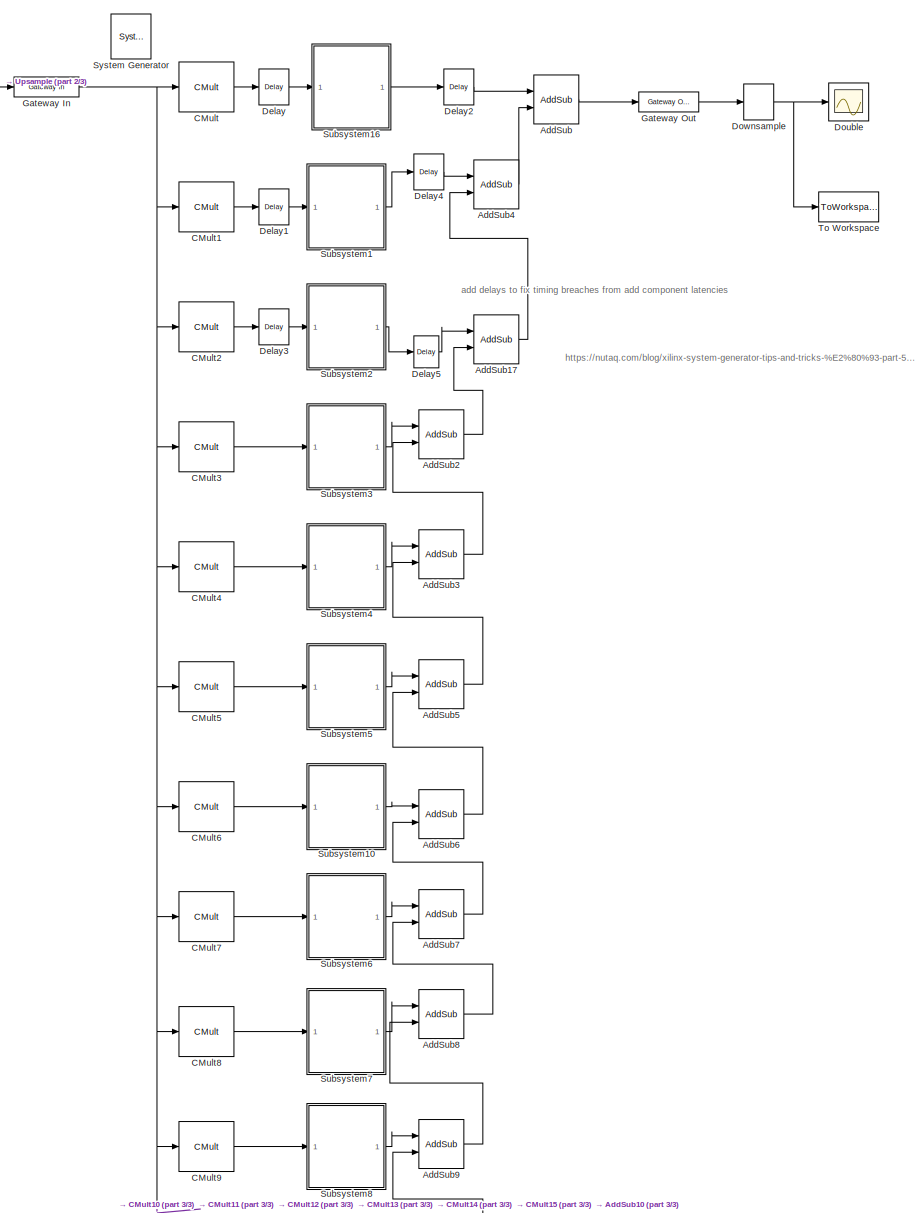
[diagram: root canvas - part 1/3, full width, top band]
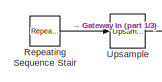
[diagram: root canvas - part 2/3, top left region]
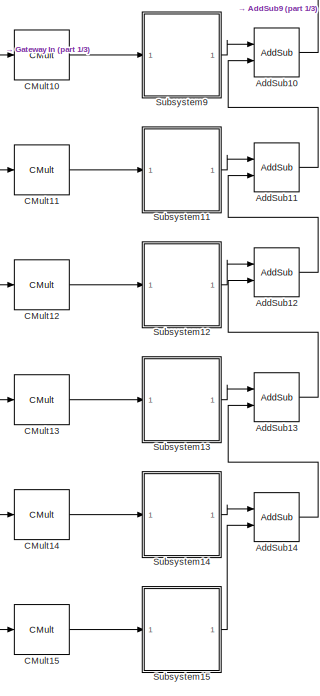
[diagram: root canvas - part 3/3, bottom center region]
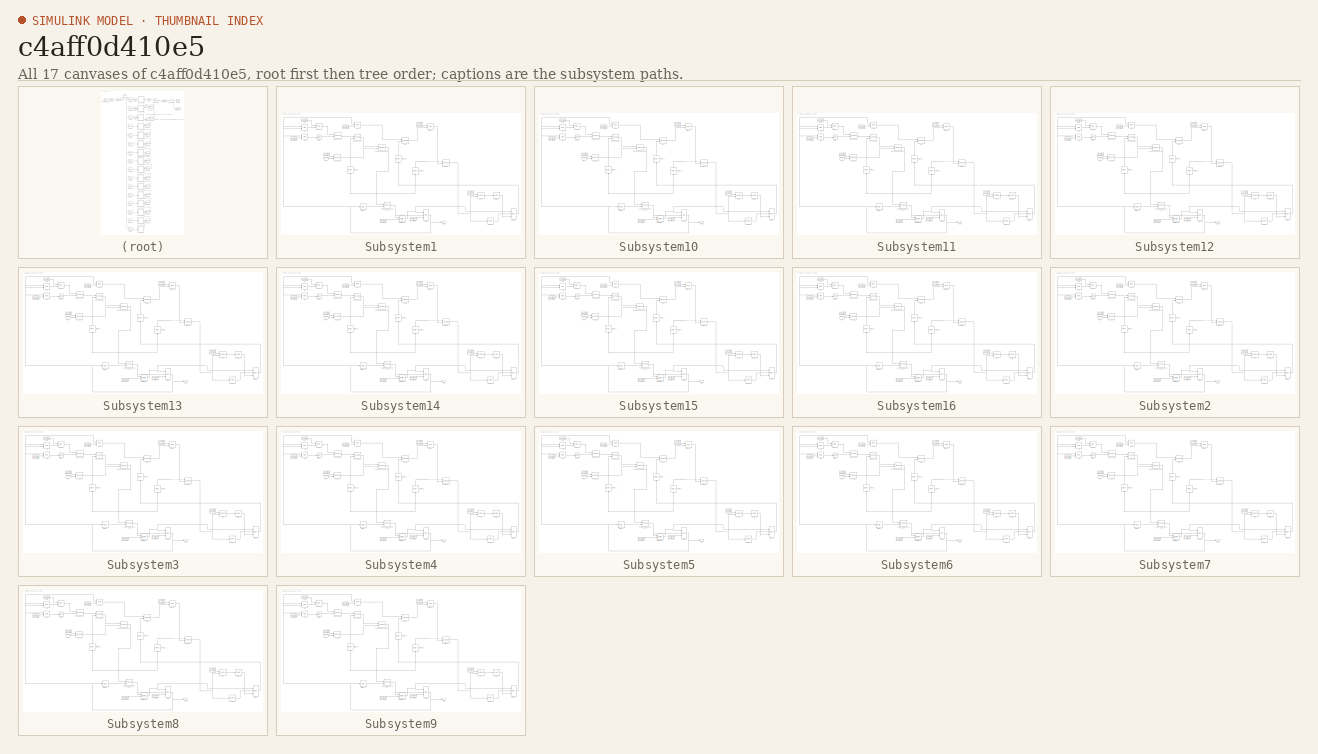
[diagram: thumbnail index - all 17 canvases of the model, root first then tree order]
MODEL slx_c4aff0d410e5
KIND model
CONFIG AbsTol = auto
CONFIG EnableMultiTasking = off
CONFIG FixedStep = auto
CONFIG MaxStep = auto
CONFIG MinStep = auto
CONFIG RelTol = 1e-3
CONFIG SampleTimeConstraint = Unconstrained
CONFIG Solver = VariableStepAuto
CONFIG SolverName = VariableStepAuto
CONFIG StartTime = 0.0
CONFIG StopTime = 12000
BLOCK [Reference]  System Generator  REF=xbsIndex_r4/ System Generator
  AttributesFormatString = System\nGenerator
  Ports = []
  SourceBlock = xbsIndex_r4/ System Generator
  SourceType = Xilinx System Generator Block
  Tag = genX
  UserDataPersistent = on
BLOCK [Reference] AddSub  REF=xbsIndex_r4/AddSub
  Ports = [2, 1]
  SourceBlock = xbsIndex_r4/AddSub
  SourceType = Xilinx Adder/Subtracter Block
BLOCK [Reference] AddSub10  REF=xbsIndex_r4/AddSub
  Ports = [2, 1]
  SourceBlock = xbsIndex_r4/AddSub
  SourceType = Xilinx Adder/Subtracter Block
BLOCK [Reference] AddSub11  REF=xbsIndex_r4/AddSub
  Ports = [2, 1]
  SourceBlock = xbsIndex_r4/AddSub
  SourceType = Xilinx Adder/Subtracter Block
BLOCK [Reference] AddSub12  REF=xbsIndex_r4/AddSub
  Ports = [2, 1]
  SourceBlock = xbsIndex_r4/AddSub
  SourceType = Xilinx Adder/Subtracter Block
BLOCK [Reference] AddSub13  REF=xbsIndex_r4/AddSub
  Ports = [2, 1]
  SourceBlock = xbsIndex_r4/AddSub
  SourceType = Xilinx Adder/Subtracter Block
BLOCK [Reference] AddSub14  REF=xbsIndex_r4/AddSub
  Ports = [2, 1]
  SourceBlock = xbsIndex_r4/AddSub
  SourceType = Xilinx Adder/Subtracter Block
BLOCK [Reference] AddSub17  REF=xbsIndex_r4/AddSub
  Ports = [2, 1]
  SourceBlock = xbsIndex_r4/AddSub
  SourceType = Xilinx Adder/Subtracter Block
BLOCK [Reference] AddSub2  REF=xbsIndex_r4/AddSub
  Ports = [2, 1]
  SourceBlock = xbsIndex_r4/AddSub
  SourceType = Xilinx Adder/Subtracter Block
BLOCK [Reference] AddSub3  REF=xbsIndex_r4/AddSub
  Ports = [2, 1]
  SourceBlock = xbsIndex_r4/AddSub
  SourceType = Xilinx Adder/Subtracter Block
BLOCK [Reference] AddSub4  REF=xbsIndex_r4/AddSub
  Ports = [2, 1]
  SourceBlock = xbsIndex_r4/AddSub
  SourceType = Xilinx Adder/Subtracter Block
BLOCK [Reference] AddSub5  REF=xbsIndex_r4/AddSub
  Ports = [2, 1]
  SourceBlock = xbsIndex_r4/AddSub
  SourceType = Xilinx Adder/Subtracter Block
BLOCK [Reference] AddSub6  REF=xbsIndex_r4/AddSub
  Ports = [2, 1]
  SourceBlock = xbsIndex_r4/AddSub
  SourceType = Xilinx Adder/Subtracter Block
BLOCK [Reference] AddSub7  REF=xbsIndex_r4/AddSub
  Ports = [2, 1]
  SourceBlock = xbsIndex_r4/AddSub
  SourceType = Xilinx Adder/Subtracter Block
BLOCK [Reference] AddSub8  REF=xbsIndex_r4/AddSub
  Ports = [2, 1]
  SourceBlock = xbsIndex_r4/AddSub
  SourceType = Xilinx Adder/Subtracter Block
BLOCK [Reference] AddSub9  REF=xbsIndex_r4/AddSub
  Ports = [2, 1]
  SourceBlock = xbsIndex_r4/AddSub
  SourceType = Xilinx Adder/Subtracter Block
BLOCK [Reference] CMult  REF=xbsIndex_r4/CMult
  Ports = [1, 1]
  SourceBlock = xbsIndex_r4/CMult
  SourceType = Xilinx Constant Multiplier Block
BLOCK [Reference] CMult1  REF=xbsIndex_r4/CMult
  Ports = [1, 1]
  SourceBlock = xbsIndex_r4/CMult
  SourceType = Xilinx Constant Multiplier Block
BLOCK [Reference] CMult10  REF=xbsIndex_r4/CMult
  Ports = [1, 1]
  SourceBlock = xbsIndex_r4/CMult
  SourceType = Xilinx Constant Multiplier Block
BLOCK [Reference] CMult11  REF=xbsIndex_r4/CMult
  Ports = [1, 1]
  SourceBlock = xbsIndex_r4/CMult
  SourceType = Xilinx Constant Multiplier Block
BLOCK [Reference] CMult12  REF=xbsIndex_r4/CMult
  Ports = [1, 1]
  SourceBlock = xbsIndex_r4/CMult
  SourceType = Xilinx Constant Multiplier Block
BLOCK [Reference] CMult13  REF=xbsIndex_r4/CMult
  Ports = [1, 1]
  SourceBlock = xbsIndex_r4/CMult
  SourceType = Xilinx Constant Multiplier Block
BLOCK [Reference] CMult14  REF=xbsIndex_r4/CMult
  Ports = [1, 1]
  SourceBlock = xbsIndex_r4/CMult
  SourceType = Xilinx Constant Multiplier Block
BLOCK [Reference] CMult15  REF=xbsIndex_r4/CMult
  Ports = [1, 1]
  SourceBlock = xbsIndex_r4/CMult
  SourceType = Xilinx Constant Multiplier Block
BLOCK [Reference] CMult2  REF=xbsIndex_r4/CMult
  Ports = [1, 1]
  SourceBlock = xbsIndex_r4/CMult
  SourceType = Xilinx Constant Multiplier Block
BLOCK [Reference] CMult3  REF=xbsIndex_r4/CMult
  Ports = [1, 1]
  SourceBlock = xbsIndex_r4/CMult
  SourceType = Xilinx Constant Multiplier Block
BLOCK [Reference] CMult4  REF=xbsIndex_r4/CMult
  Ports = [1, 1]
  SourceBlock = xbsIndex_r4/CMult
  SourceType = Xilinx Constant Multiplier Block
BLOCK [Reference] CMult5  REF=xbsIndex_r4/CMult
  Ports = [1, 1]
  SourceBlock = xbsIndex_r4/CMult
  SourceType = Xilinx Constant Multiplier Block
BLOCK [Reference] CMult6  REF=xbsIndex_r4/CMult
  Ports = [1, 1]
  SourceBlock = xbsIndex_r4/CMult
  SourceType = Xilinx Constant Multiplier Block
BLOCK [Reference] CMult7  REF=xbsIndex_r4/CMult
  Ports = [1, 1]
  SourceBlock = xbsIndex_r4/CMult
  SourceType = Xilinx Constant Multiplier Block
BLOCK [Reference] CMult8  REF=xbsIndex_r4/CMult
  Ports = [1, 1]
  SourceBlock = xbsIndex_r4/CMult
  SourceType = Xilinx Constant Multiplier Block
BLOCK [Reference] CMult9  REF=xbsIndex_r4/CMult
  Ports = [1, 1]
  SourceBlock = xbsIndex_r4/CMult
  SourceType = Xilinx Constant Multiplier Block
BLOCK [Reference] Delay  REF=xbsIndex_r4/Delay
  Ports = [1, 1]
  SourceBlock = xbsIndex_r4/Delay
  SourceType = Xilinx Delay Block
BLOCK [Reference] Delay1  REF=xbsIndex_r4/Delay
  Ports = [1, 1]
  SourceBlock = xbsIndex_r4/Delay
  SourceType = Xilinx Delay Block
BLOCK [Reference] Delay2  REF=xbsIndex_r4/Delay
  Ports = [1, 1]
  SourceBlock = xbsIndex_r4/Delay
  SourceType = Xilinx Delay Block
BLOCK [Reference] Delay3  REF=xbsIndex_r4/Delay
  Ports = [1, 1]
  SourceBlock = xbsIndex_r4/Delay
  SourceType = Xilinx Delay Block
BLOCK [Reference] Delay4  REF=xbsIndex_r4/Delay
  Ports = [1, 1]
  SourceBlock = xbsIndex_r4/Delay
  SourceType = Xilinx Delay Block
BLOCK [Reference] Delay5  REF=xbsIndex_r4/Delay
  Ports = [1, 1]
  SourceBlock = xbsIndex_r4/Delay
  SourceType = Xilinx Delay Block
BLOCK [Scope] Double
  Floating = off
  NumInputPorts = 1
  Ports = [1]
  ScopeSpecificationString = Simulink.scopes.TimeScopeBlockCfg('CurrentConfiguration', extmgr.ConfigurationSet(extmgr.Configuration('Core','General UI',true),extmgr.Configuration('Core','Source UI',true),extmgr.Configuration('Sources','WiredSimulink',true),extmgr.Configuration('Visuals','Time Domain',true,'SerializedDisplays',{struct('MinYLimReal','-1168.16982','MaxYLimReal','129.79665','YLabelReal','','MinYLimMag','  0.00000...<+1453ch>
BLOCK [DownSample] Downsample
  InputProcessing = Elements as channels (sample based)
  N = 12
  RateOptions = Allow multirate processing
  phase = 9
BLOCK [Reference] Gateway In  REF=xbsIndex_r4/Gateway In
  Ports = [1, 1]
  SourceBlock = xbsIndex_r4/Gateway In
  SourceType = Xilinx Gateway In Block
BLOCK [Reference] Gateway Out  REF=xbsIndex_r4/Gateway Out
  Ports = [1, 1]
  SourceBlock = xbsIndex_r4/Gateway Out
  SourceType = Xilinx Gateway Out Block
BLOCK [Reference] Repeating Sequence Stair  REF=simulink/Sources/Repeating
Sequence
Stair
  Ports = [0, 1]
  SourceBlock = simulink/Sources/Repeating\nSequence\nStair
  SourceProductBaseCode = SL
  SourceProductName = Simulink
  SourceType = Repeating Sequence Stair
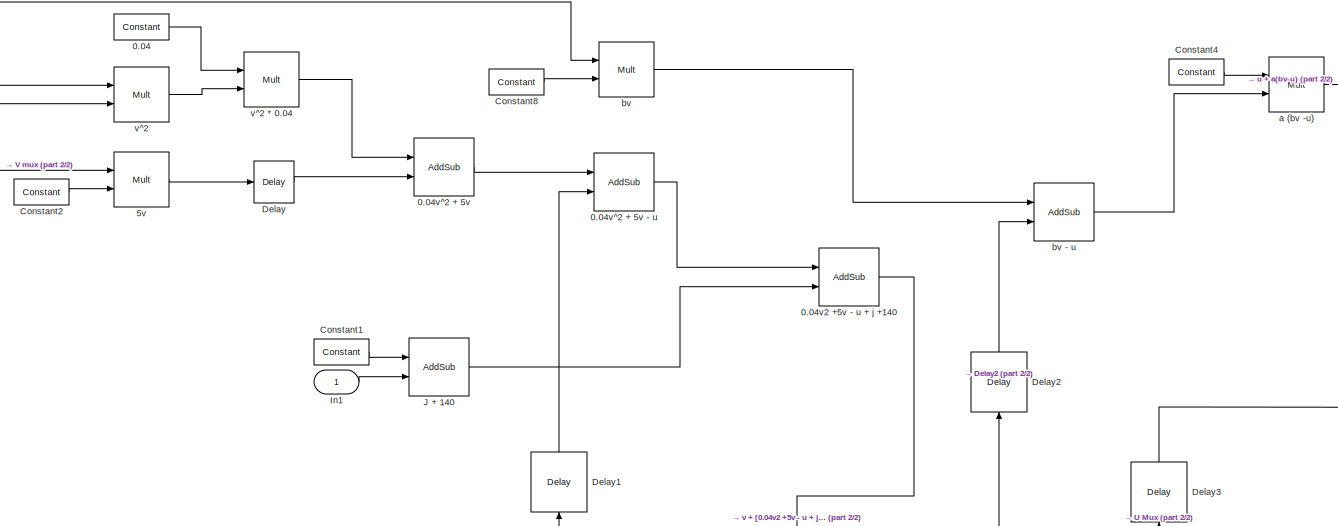
[diagram: Subsystem1 - part 1/2, top center region]
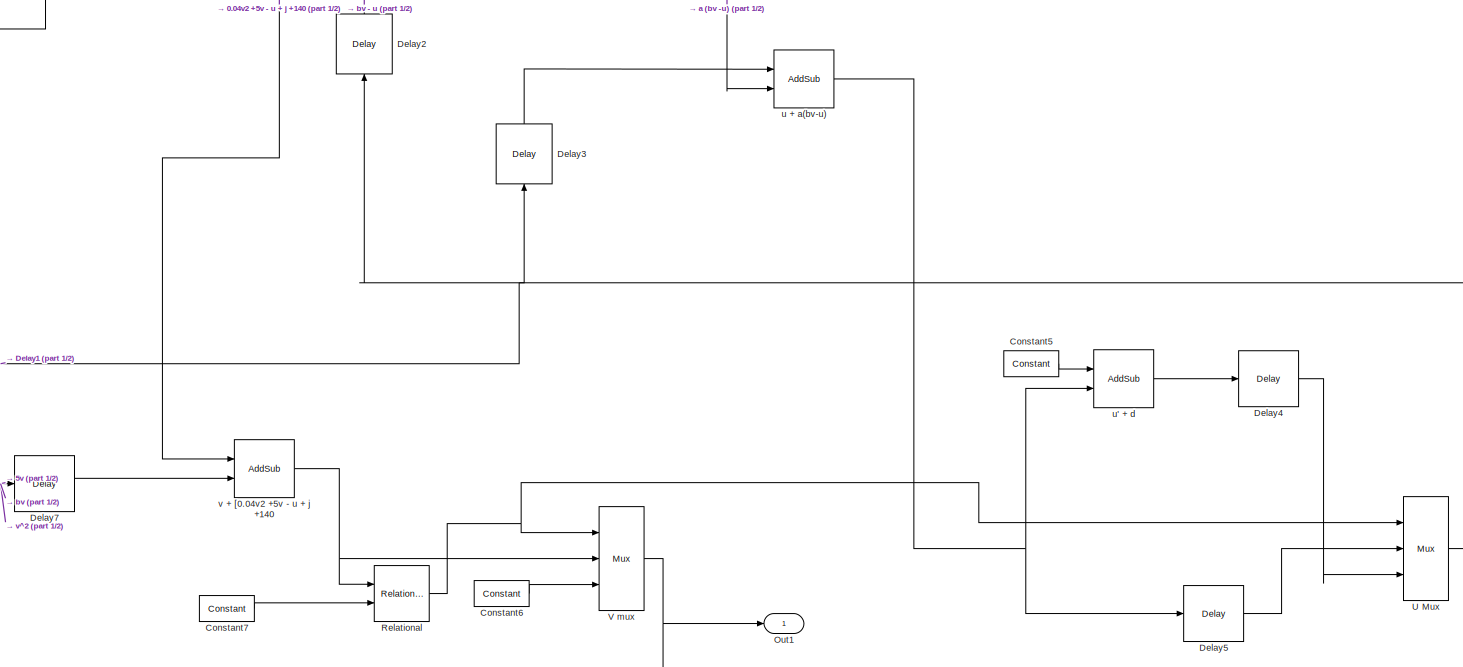
[diagram: Subsystem1 - part 2/2, central region]
BLOCK [SubSystem] Subsystem1
  Ports = [1, 1]
  RequestExecContextInheritance = off
BLOCK [Reference] Subsystem1/0.04   REF=xbsIndex_r4/Constant
  Ports = [0, 1]
  SourceBlock = xbsIndex_r4/Constant
  SourceType = Xilinx Constant Block Block
BLOCK [Reference] Subsystem1/0.04v2 +5v - u + j +140  REF=xbsIndex_r4/AddSub
  Ports = [2, 1]
  SourceBlock = xbsIndex_r4/AddSub
  SourceType = Xilinx Adder/Subtracter Block
BLOCK [Reference] Subsystem1/0.04v^2 + 5v  REF=xbsIndex_r4/AddSub
  Ports = [2, 1]
  SourceBlock = xbsIndex_r4/AddSub
  SourceType = Xilinx Adder/Subtracter Block
BLOCK [Reference] Subsystem1/0.04v^2 + 5v - u  REF=xbsIndex_r4/AddSub
  Ports = [2, 1]
  SourceBlock = xbsIndex_r4/AddSub
  SourceType = Xilinx Adder/Subtracter Block
BLOCK [Reference] Subsystem1/5v  REF=xbsIndex_r4/Mult
  Ports = [2, 1]
  SourceBlock = xbsIndex_r4/Mult
  SourceType = Xilinx Multiplier Block
BLOCK [Reference] Subsystem1/Constant1  REF=xbsIndex_r4/Constant
  Ports = [0, 1]
  SourceBlock = xbsIndex_r4/Constant
  SourceType = Xilinx Constant Block Block
BLOCK [Reference] Subsystem1/Constant2  REF=xbsIndex_r4/Constant
  Ports = [0, 1]
  SourceBlock = xbsIndex_r4/Constant
  SourceType = Xilinx Constant Block Block
BLOCK [Reference] Subsystem1/Constant4  REF=xbsIndex_r4/Constant
  Ports = [0, 1]
  SourceBlock = xbsIndex_r4/Constant
  SourceType = Xilinx Constant Block Block
BLOCK [Reference] Subsystem1/Constant5  REF=xbsIndex_r4/Constant
  Ports = [0, 1]
  SourceBlock = xbsIndex_r4/Constant
  SourceType = Xilinx Constant Block Block
BLOCK [Reference] Subsystem1/Constant6  REF=xbsIndex_r4/Constant
  Ports = [0, 1]
  SourceBlock = xbsIndex_r4/Constant
  SourceType = Xilinx Constant Block Block
BLOCK [Reference] Subsystem1/Constant7  REF=xbsIndex_r4/Constant
  Ports = [0, 1]
  SourceBlock = xbsIndex_r4/Constant
  SourceType = Xilinx Constant Block Block
BLOCK [Reference] Subsystem1/Constant8  REF=xbsIndex_r4/Constant
  Ports = [0, 1]
  SourceBlock = xbsIndex_r4/Constant
  SourceType = Xilinx Constant Block Block
BLOCK [Reference] Subsystem1/Delay  REF=xbsIndex_r4/Delay
  Ports = [1, 1]
  SourceBlock = xbsIndex_r4/Delay
  SourceType = Xilinx Delay Block
BLOCK [Reference] Subsystem1/Delay1  REF=xbsIndex_r4/Delay
  Ports = [1, 1]
  SourceBlock = xbsIndex_r4/Delay
  SourceType = Xilinx Delay Block
BLOCK [Reference] Subsystem1/Delay2  REF=xbsIndex_r4/Delay
  Ports = [1, 1]
  SourceBlock = xbsIndex_r4/Delay
  SourceType = Xilinx Delay Block
BLOCK [Reference] Subsystem1/Delay3  REF=xbsIndex_r4/Delay
  Ports = [1, 1]
  SourceBlock = xbsIndex_r4/Delay
  SourceType = Xilinx Delay Block
BLOCK [Reference] Subsystem1/Delay4  REF=xbsIndex_r4/Delay
  Ports = [1, 1]
  SourceBlock = xbsIndex_r4/Delay
  SourceType = Xilinx Delay Block
BLOCK [Reference] Subsystem1/Delay5  REF=xbsIndex_r4/Delay
  Ports = [1, 1]
  SourceBlock = xbsIndex_r4/Delay
  SourceType = Xilinx Delay Block
BLOCK [Reference] Subsystem1/Delay7  REF=xbsIndex_r4/Delay
  Ports = [1, 1]
  SourceBlock = xbsIndex_r4/Delay
  SourceType = Xilinx Delay Block
BLOCK [Inport] Subsystem1/In1
  IconDisplay = Port number
BLOCK [Reference] Subsystem1/J + 140   REF=xbsIndex_r4/AddSub
  Ports = [2, 1]
  SourceBlock = xbsIndex_r4/AddSub
  SourceType = Xilinx Adder/Subtracter Block
BLOCK [Outport] Subsystem1/Out1
  IconDisplay = Port number
BLOCK [Reference] Subsystem1/Relational  REF=xbsIndex_r4/Relational
  Ports = [2, 1]
  SourceBlock = xbsIndex_r4/Relational
  SourceType = Xilinx Arithmetic Relational Operator Block
BLOCK [Reference] Subsystem1/U Mux  REF=xbsIndex_r4/Mux
  Ports = [3, 1]
  SourceBlock = xbsIndex_r4/Mux
  SourceType = Xilinx Bus Multiplexer Block
BLOCK [Reference] Subsystem1/V mux  REF=xbsIndex_r4/Mux
  Ports = [3, 1]
  SourceBlock = xbsIndex_r4/Mux
  SourceType = Xilinx Bus Multiplexer Block
BLOCK [Reference] Subsystem1/a (bv -u)  REF=xbsIndex_r4/Mult
  Ports = [2, 1]
  SourceBlock = xbsIndex_r4/Mult
  SourceType = Xilinx Multiplier Block
BLOCK [Reference] Subsystem1/bv   REF=xbsIndex_r4/Mult
  Ports = [2, 1]
  SourceBlock = xbsIndex_r4/Mult
  SourceType = Xilinx Multiplier Block
BLOCK [Reference] Subsystem1/bv - u  REF=xbsIndex_r4/AddSub
  Ports = [2, 1]
  SourceBlock = xbsIndex_r4/AddSub
  SourceType = Xilinx Adder/Subtracter Block
BLOCK [Reference] Subsystem1/u + a(bv-u)  REF=xbsIndex_r4/AddSub
  Ports = [2, 1]
  SourceBlock = xbsIndex_r4/AddSub
  SourceType = Xilinx Adder/Subtracter Block
BLOCK [Reference] Subsystem1/u' + d  REF=xbsIndex_r4/AddSub
  Ports = [2, 1]
  SourceBlock = xbsIndex_r4/AddSub
  SourceType = Xilinx Adder/Subtracter Block
BLOCK [Reference] Subsystem1/v + [0.04v2 +5v - u + j +140  REF=xbsIndex_r4/AddSub
  Ports = [2, 1]
  SourceBlock = xbsIndex_r4/AddSub
  SourceType = Xilinx Adder/Subtracter Block
BLOCK [Reference] Subsystem1/v^2   REF=xbsIndex_r4/Mult
  Ports = [2, 1]
  SourceBlock = xbsIndex_r4/Mult
  SourceType = Xilinx Multiplier Block
BLOCK [Reference] Subsystem1/v^2 * 0.04  REF=xbsIndex_r4/Mult
  Ports = [2, 1]
  SourceBlock = xbsIndex_r4/Mult
  SourceType = Xilinx Multiplier Block
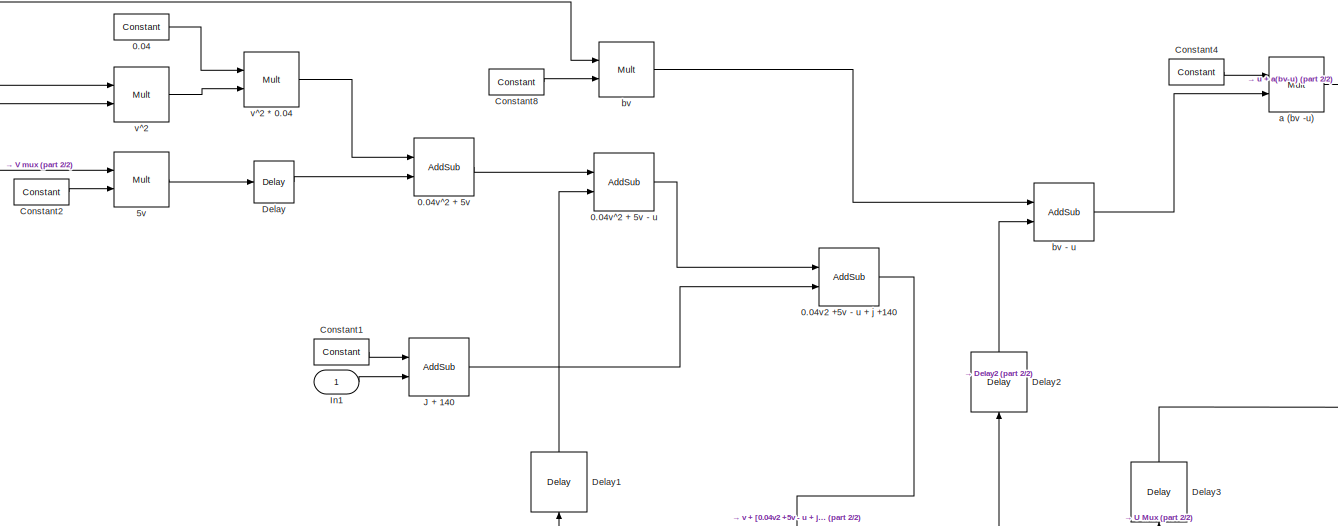
[diagram: Subsystem10 - part 1/2, top center region]
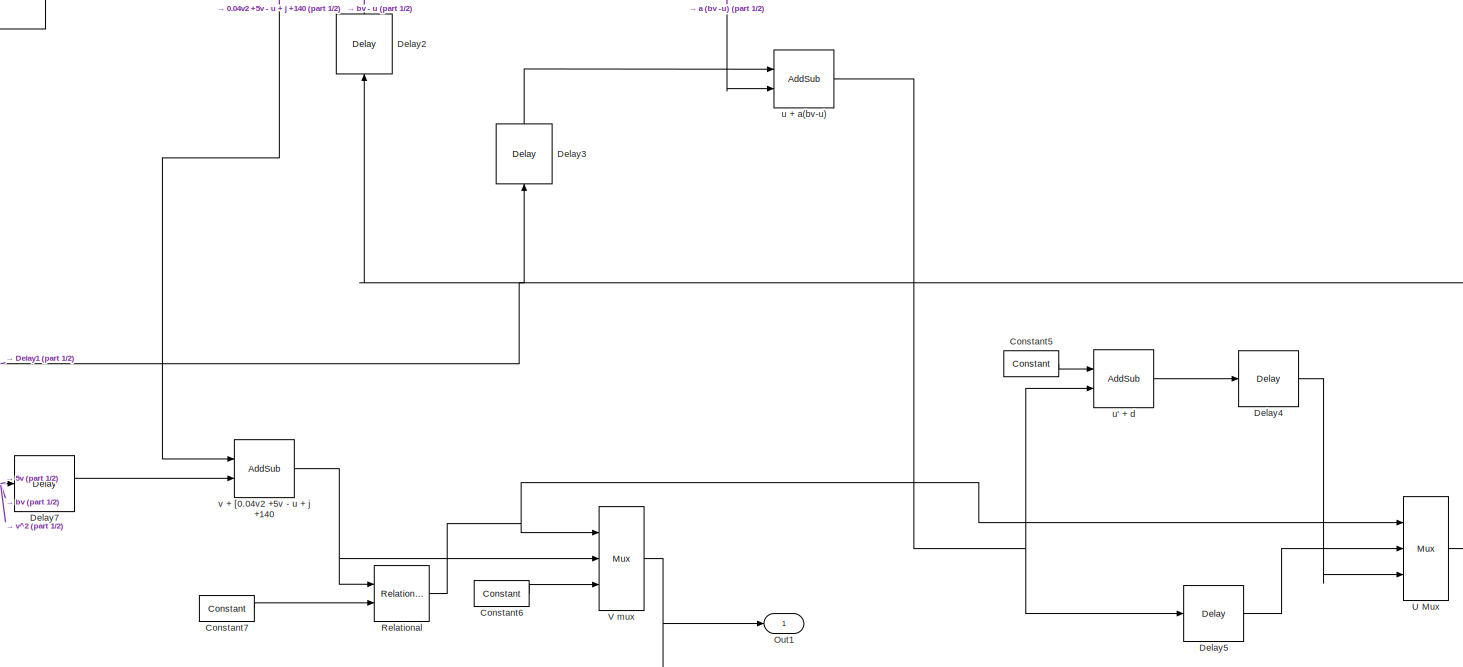
[diagram: Subsystem10 - part 2/2, central region]
BLOCK [SubSystem] Subsystem10
  Ports = [1, 1]
  RequestExecContextInheritance = off
BLOCK [Reference] Subsystem10/0.04   REF=xbsIndex_r4/Constant
  Ports = [0, 1]
  SourceBlock = xbsIndex_r4/Constant
  SourceType = Xilinx Constant Block Block
BLOCK [Reference] Subsystem10/0.04v2 +5v - u + j +140  REF=xbsIndex_r4/AddSub
  Ports = [2, 1]
  SourceBlock = xbsIndex_r4/AddSub
  SourceType = Xilinx Adder/Subtracter Block
BLOCK [Reference] Subsystem10/0.04v^2 + 5v  REF=xbsIndex_r4/AddSub
  Ports = [2, 1]
  SourceBlock = xbsIndex_r4/AddSub
  SourceType = Xilinx Adder/Subtracter Block
BLOCK [Reference] Subsystem10/0.04v^2 + 5v - u  REF=xbsIndex_r4/AddSub
  Ports = [2, 1]
  SourceBlock = xbsIndex_r4/AddSub
  SourceType = Xilinx Adder/Subtracter Block
BLOCK [Reference] Subsystem10/5v  REF=xbsIndex_r4/Mult
  Ports = [2, 1]
  SourceBlock = xbsIndex_r4/Mult
  SourceType = Xilinx Multiplier Block
BLOCK [Reference] Subsystem10/Constant1  REF=xbsIndex_r4/Constant
  Ports = [0, 1]
  SourceBlock = xbsIndex_r4/Constant
  SourceType = Xilinx Constant Block Block
BLOCK [Reference] Subsystem10/Constant2  REF=xbsIndex_r4/Constant
  Ports = [0, 1]
  SourceBlock = xbsIndex_r4/Constant
  SourceType = Xilinx Constant Block Block
BLOCK [Reference] Subsystem10/Constant4  REF=xbsIndex_r4/Constant
  Ports = [0, 1]
  SourceBlock = xbsIndex_r4/Constant
  SourceType = Xilinx Constant Block Block
BLOCK [Reference] Subsystem10/Constant5  REF=xbsIndex_r4/Constant
  Ports = [0, 1]
  SourceBlock = xbsIndex_r4/Constant
  SourceType = Xilinx Constant Block Block
BLOCK [Reference] Subsystem10/Constant6  REF=xbsIndex_r4/Constant
  Ports = [0, 1]
  SourceBlock = xbsIndex_r4/Constant
  SourceType = Xilinx Constant Block Block
BLOCK [Reference] Subsystem10/Constant7  REF=xbsIndex_r4/Constant
  Ports = [0, 1]
  SourceBlock = xbsIndex_r4/Constant
  SourceType = Xilinx Constant Block Block
BLOCK [Reference] Subsystem10/Constant8  REF=xbsIndex_r4/Constant
  Ports = [0, 1]
  SourceBlock = xbsIndex_r4/Constant
  SourceType = Xilinx Constant Block Block
BLOCK [Reference] Subsystem10/Delay  REF=xbsIndex_r4/Delay
  Ports = [1, 1]
  SourceBlock = xbsIndex_r4/Delay
  SourceType = Xilinx Delay Block
BLOCK [Reference] Subsystem10/Delay1  REF=xbsIndex_r4/Delay
  Ports = [1, 1]
  SourceBlock = xbsIndex_r4/Delay
  SourceType = Xilinx Delay Block
BLOCK [Reference] Subsystem10/Delay2  REF=xbsIndex_r4/Delay
  Ports = [1, 1]
  SourceBlock = xbsIndex_r4/Delay
  SourceType = Xilinx Delay Block
BLOCK [Reference] Subsystem10/Delay3  REF=xbsIndex_r4/Delay
  Ports = [1, 1]
  SourceBlock = xbsIndex_r4/Delay
  SourceType = Xilinx Delay Block
BLOCK [Reference] Subsystem10/Delay4  REF=xbsIndex_r4/Delay
  Ports = [1, 1]
  SourceBlock = xbsIndex_r4/Delay
  SourceType = Xilinx Delay Block
BLOCK [Reference] Subsystem10/Delay5  REF=xbsIndex_r4/Delay
  Ports = [1, 1]
  SourceBlock = xbsIndex_r4/Delay
  SourceType = Xilinx Delay Block
BLOCK [Reference] Subsystem10/Delay7  REF=xbsIndex_r4/Delay
  Ports = [1, 1]
  SourceBlock = xbsIndex_r4/Delay
  SourceType = Xilinx Delay Block
BLOCK [Inport] Subsystem10/In1
  IconDisplay = Port number
BLOCK [Reference] Subsystem10/J + 140   REF=xbsIndex_r4/AddSub
  Ports = [2, 1]
  SourceBlock = xbsIndex_r4/AddSub
  SourceType = Xilinx Adder/Subtracter Block
BLOCK [Outport] Subsystem10/Out1
  IconDisplay = Port number
BLOCK [Reference] Subsystem10/Relational  REF=xbsIndex_r4/Relational
  Ports = [2, 1]
  SourceBlock = xbsIndex_r4/Relational
  SourceType = Xilinx Arithmetic Relational Operator Block
BLOCK [Reference] Subsystem10/U Mux  REF=xbsIndex_r4/Mux
  Ports = [3, 1]
  SourceBlock = xbsIndex_r4/Mux
  SourceType = Xilinx Bus Multiplexer Block
BLOCK [Reference] Subsystem10/V mux  REF=xbsIndex_r4/Mux
  Ports = [3, 1]
  SourceBlock = xbsIndex_r4/Mux
  SourceType = Xilinx Bus Multiplexer Block
BLOCK [Reference] Subsystem10/a (bv -u)  REF=xbsIndex_r4/Mult
  Ports = [2, 1]
  SourceBlock = xbsIndex_r4/Mult
  SourceType = Xilinx Multiplier Block
BLOCK [Reference] Subsystem10/bv   REF=xbsIndex_r4/Mult
  Ports = [2, 1]
  SourceBlock = xbsIndex_r4/Mult
  SourceType = Xilinx Multiplier Block
BLOCK [Reference] Subsystem10/bv - u  REF=xbsIndex_r4/AddSub
  Ports = [2, 1]
  SourceBlock = xbsIndex_r4/AddSub
  SourceType = Xilinx Adder/Subtracter Block
BLOCK [Reference] Subsystem10/u + a(bv-u)  REF=xbsIndex_r4/AddSub
  Ports = [2, 1]
  SourceBlock = xbsIndex_r4/AddSub
  SourceType = Xilinx Adder/Subtracter Block
BLOCK [Reference] Subsystem10/u' + d  REF=xbsIndex_r4/AddSub
  Ports = [2, 1]
  SourceBlock = xbsIndex_r4/AddSub
  SourceType = Xilinx Adder/Subtracter Block
BLOCK [Reference] Subsystem10/v + [0.04v2 +5v - u + j +140  REF=xbsIndex_r4/AddSub
  Ports = [2, 1]
  SourceBlock = xbsIndex_r4/AddSub
  SourceType = Xilinx Adder/Subtracter Block
BLOCK [Reference] Subsystem10/v^2   REF=xbsIndex_r4/Mult
  Ports = [2, 1]
  SourceBlock = xbsIndex_r4/Mult
  SourceType = Xilinx Multiplier Block
BLOCK [Reference] Subsystem10/v^2 * 0.04  REF=xbsIndex_r4/Mult
  Ports = [2, 1]
  SourceBlock = xbsIndex_r4/Mult
  SourceType = Xilinx Multiplier Block
BLOCK [SubSystem] Subsystem11
  Ports = [1, 1]
  RequestExecContextInheritance = off
BLOCK [Reference] Subsystem11/0.04   REF=xbsIndex_r4/Constant
  Ports = [0, 1]
  SourceBlock = xbsIndex_r4/Constant
  SourceType = Xilinx Constant Block Block
BLOCK [Reference] Subsystem11/0.04v2 +5v - u + j +140  REF=xbsIndex_r4/AddSub
  Ports = [2, 1]
  SourceBlock = xbsIndex_r4/AddSub
  SourceType = Xilinx Adder/Subtracter Block
BLOCK [Reference] Subsystem11/0.04v^2 + 5v  REF=xbsIndex_r4/AddSub
  Ports = [2, 1]
  SourceBlock = xbsIndex_r4/AddSub
  SourceType = Xilinx Adder/Subtracter Block
BLOCK [Reference] Subsystem11/0.04v^2 + 5v - u  REF=xbsIndex_r4/AddSub
  Ports = [2, 1]
  SourceBlock = xbsIndex_r4/AddSub
  SourceType = Xilinx Adder/Subtracter Block
BLOCK [Reference] Subsystem11/5v  REF=xbsIndex_r4/Mult
  Ports = [2, 1]
  SourceBlock = xbsIndex_r4/Mult
  SourceType = Xilinx Multiplier Block
BLOCK [Reference] Subsystem11/Constant1  REF=xbsIndex_r4/Constant
  Ports = [0, 1]
  SourceBlock = xbsIndex_r4/Constant
  SourceType = Xilinx Constant Block Block
BLOCK [Reference] Subsystem11/Constant2  REF=xbsIndex_r4/Constant
  Ports = [0, 1]
  SourceBlock = xbsIndex_r4/Constant
  SourceType = Xilinx Constant Block Block
BLOCK [Reference] Subsystem11/Constant4  REF=xbsIndex_r4/Constant
  Ports = [0, 1]
  SourceBlock = xbsIndex_r4/Constant
  SourceType = Xilinx Constant Block Block
BLOCK [Reference] Subsystem11/Constant5  REF=xbsIndex_r4/Constant
  Ports = [0, 1]
  SourceBlock = xbsIndex_r4/Constant
  SourceType = Xilinx Constant Block Block
BLOCK [Reference] Subsystem11/Constant6  REF=xbsIndex_r4/Constant
  Ports = [0, 1]
  SourceBlock = xbsIndex_r4/Constant
  SourceType = Xilinx Constant Block Block
BLOCK [Reference] Subsystem11/Constant7  REF=xbsIndex_r4/Constant
  Ports = [0, 1]
  SourceBlock = xbsIndex_r4/Constant
  SourceType = Xilinx Constant Block Block
BLOCK [Reference] Subsystem11/Constant8  REF=xbsIndex_r4/Constant
  Ports = [0, 1]
  SourceBlock = xbsIndex_r4/Constant
  SourceType = Xilinx Constant Block Block
BLOCK [Reference] Subsystem11/Delay  REF=xbsIndex_r4/Delay
  Ports = [1, 1]
  SourceBlock = xbsIndex_r4/Delay
  SourceType = Xilinx Delay Block
BLOCK [Reference] Subsystem11/Delay1  REF=xbsIndex_r4/Delay
  Ports = [1, 1]
  SourceBlock = xbsIndex_r4/Delay
  SourceType = Xilinx Delay Block
BLOCK [Reference] Subsystem11/Delay2  REF=xbsIndex_r4/Delay
  Ports = [1, 1]
  SourceBlock = xbsIndex_r4/Delay
  SourceType = Xilinx Delay Block
BLOCK [Reference] Subsystem11/Delay3  REF=xbsIndex_r4/Delay
  Ports = [1, 1]
  SourceBlock = xbsIndex_r4/Delay
  SourceType = Xilinx Delay Block
BLOCK [Reference] Subsystem11/Delay4  REF=xbsIndex_r4/Delay
  Ports = [1, 1]
  SourceBlock = xbsIndex_r4/Delay
  SourceType = Xilinx Delay Block
BLOCK [Reference] Subsystem11/Delay5  REF=xbsIndex_r4/Delay
  Ports = [1, 1]
  SourceBlock = xbsIndex_r4/Delay
  SourceType = Xilinx Delay Block
BLOCK [Reference] Subsystem11/Delay7  REF=xbsIndex_r4/Delay
  Ports = [1, 1]
  SourceBlock = xbsIndex_r4/Delay
  SourceType = Xilinx Delay Block
BLOCK [Inport] Subsystem11/In1
  IconDisplay = Port number
BLOCK [Reference] Subsystem11/J + 140   REF=xbsIndex_r4/AddSub
  Ports = [2, 1]
  SourceBlock = xbsIndex_r4/AddSub
  SourceType = Xilinx Adder/Subtracter Block
BLOCK [Outport] Subsystem11/Out1
  IconDisplay = Port number
BLOCK [Reference] Subsystem11/Relational  REF=xbsIndex_r4/Relational
  Ports = [2, 1]
  SourceBlock = xbsIndex_r4/Relational
  SourceType = Xilinx Arithmetic Relational Operator Block
BLOCK [Reference] Subsystem11/U Mux  REF=xbsIndex_r4/Mux
  Ports = [3, 1]
  SourceBlock = xbsIndex_r4/Mux
  SourceType = Xilinx Bus Multiplexer Block
BLOCK [Reference] Subsystem11/V mux  REF=xbsIndex_r4/Mux
  Ports = [3, 1]
  SourceBlock = xbsIndex_r4/Mux
  SourceType = Xilinx Bus Multiplexer Block
BLOCK [Reference] Subsystem11/a (bv -u)  REF=xbsIndex_r4/Mult
  Ports = [2, 1]
  SourceBlock = xbsIndex_r4/Mult
  SourceType = Xilinx Multiplier Block
BLOCK [Reference] Subsystem11/bv   REF=xbsIndex_r4/Mult
  Ports = [2, 1]
  SourceBlock = xbsIndex_r4/Mult
  SourceType = Xilinx Multiplier Block
BLOCK [Reference] Subsystem11/bv - u  REF=xbsIndex_r4/AddSub
  Ports = [2, 1]
  SourceBlock = xbsIndex_r4/AddSub
  SourceType = Xilinx Adder/Subtracter Block
BLOCK [Reference] Subsystem11/u + a(bv-u)  REF=xbsIndex_r4/AddSub
  Ports = [2, 1]
  SourceBlock = xbsIndex_r4/AddSub
  SourceType = Xilinx Adder/Subtracter Block
BLOCK [Reference] Subsystem11/u' + d  REF=xbsIndex_r4/AddSub
  Ports = [2, 1]
  SourceBlock = xbsIndex_r4/AddSub
  SourceType = Xilinx Adder/Subtracter Block
BLOCK [Reference] Subsystem11/v + [0.04v2 +5v - u + j +140  REF=xbsIndex_r4/AddSub
  Ports = [2, 1]
  SourceBlock = xbsIndex_r4/AddSub
  SourceType = Xilinx Adder/Subtracter Block
BLOCK [Reference] Subsystem11/v^2   REF=xbsIndex_r4/Mult
  Ports = [2, 1]
  SourceBlock = xbsIndex_r4/Mult
  SourceType = Xilinx Multiplier Block
BLOCK [Reference] Subsystem11/v^2 * 0.04  REF=xbsIndex_r4/Mult
  Ports = [2, 1]
  SourceBlock = xbsIndex_r4/Mult
  SourceType = Xilinx Multiplier Block
BLOCK [SubSystem] Subsystem12
  Ports = [1, 1]
  RequestExecContextInheritance = off
BLOCK [Reference] Subsystem12/0.04   REF=xbsIndex_r4/Constant
  Ports = [0, 1]
  SourceBlock = xbsIndex_r4/Constant
  SourceType = Xilinx Constant Block Block
BLOCK [Reference] Subsystem12/0.04v2 +5v - u + j +140  REF=xbsIndex_r4/AddSub
  Ports = [2, 1]
  SourceBlock = xbsIndex_r4/AddSub
  SourceType = Xilinx Adder/Subtracter Block
BLOCK [Reference] Subsystem12/0.04v^2 + 5v  REF=xbsIndex_r4/AddSub
  Ports = [2, 1]
  SourceBlock = xbsIndex_r4/AddSub
  SourceType = Xilinx Adder/Subtracter Block
BLOCK [Reference] Subsystem12/0.04v^2 + 5v - u  REF=xbsIndex_r4/AddSub
  Ports = [2, 1]
  SourceBlock = xbsIndex_r4/AddSub
  SourceType = Xilinx Adder/Subtracter Block
BLOCK [Reference] Subsystem12/5v  REF=xbsIndex_r4/Mult
  Ports = [2, 1]
  SourceBlock = xbsIndex_r4/Mult
  SourceType = Xilinx Multiplier Block
BLOCK [Reference] Subsystem12/Constant1  REF=xbsIndex_r4/Constant
  Ports = [0, 1]
  SourceBlock = xbsIndex_r4/Constant
  SourceType = Xilinx Constant Block Block
BLOCK [Reference] Subsystem12/Constant2  REF=xbsIndex_r4/Constant
  Ports = [0, 1]
  SourceBlock = xbsIndex_r4/Constant
  SourceType = Xilinx Constant Block Block
BLOCK [Reference] Subsystem12/Constant4  REF=xbsIndex_r4/Constant
  Ports = [0, 1]
  SourceBlock = xbsIndex_r4/Constant
  SourceType = Xilinx Constant Block Block
BLOCK [Reference] Subsystem12/Constant5  REF=xbsIndex_r4/Constant
  Ports = [0, 1]
  SourceBlock = xbsIndex_r4/Constant
  SourceType = Xilinx Constant Block Block
BLOCK [Reference] Subsystem12/Constant6  REF=xbsIndex_r4/Constant
  Ports = [0, 1]
  SourceBlock = xbsIndex_r4/Constant
  SourceType = Xilinx Constant Block Block
BLOCK [Reference] Subsystem12/Constant7  REF=xbsIndex_r4/Constant
  Ports = [0, 1]
  SourceBlock = xbsIndex_r4/Constant
  SourceType = Xilinx Constant Block Block
BLOCK [Reference] Subsystem12/Constant8  REF=xbsIndex_r4/Constant
  Ports = [0, 1]
  SourceBlock = xbsIndex_r4/Constant
  SourceType = Xilinx Constant Block Block
BLOCK [Reference] Subsystem12/Delay  REF=xbsIndex_r4/Delay
  Ports = [1, 1]
  SourceBlock = xbsIndex_r4/Delay
  SourceType = Xilinx Delay Block
BLOCK [Reference] Subsystem12/Delay1  REF=xbsIndex_r4/Delay
  Ports = [1, 1]
  SourceBlock = xbsIndex_r4/Delay
  SourceType = Xilinx Delay Block
BLOCK [Reference] Subsystem12/Delay2  REF=xbsIndex_r4/Delay
  Ports = [1, 1]
  SourceBlock = xbsIndex_r4/Delay
  SourceType = Xilinx Delay Block
BLOCK [Reference] Subsystem12/Delay3  REF=xbsIndex_r4/Delay
  Ports = [1, 1]
  SourceBlock = xbsIndex_r4/Delay
  SourceType = Xilinx Delay Block
BLOCK [Reference] Subsystem12/Delay4  REF=xbsIndex_r4/Delay
  Ports = [1, 1]
  SourceBlock = xbsIndex_r4/Delay
  SourceType = Xilinx Delay Block
BLOCK [Reference] Subsystem12/Delay5  REF=xbsIndex_r4/Delay
  Ports = [1, 1]
  SourceBlock = xbsIndex_r4/Delay
  SourceType = Xilinx Delay Block
BLOCK [Reference] Subsystem12/Delay7  REF=xbsIndex_r4/Delay
  Ports = [1, 1]
  SourceBlock = xbsIndex_r4/Delay
  SourceType = Xilinx Delay Block
BLOCK [Inport] Subsystem12/In1
  IconDisplay = Port number
BLOCK [Reference] Subsystem12/J + 140   REF=xbsIndex_r4/AddSub
  Ports = [2, 1]
  SourceBlock = xbsIndex_r4/AddSub
  SourceType = Xilinx Adder/Subtracter Block
BLOCK [Outport] Subsystem12/Out1
  IconDisplay = Port number
BLOCK [Reference] Subsystem12/Relational  REF=xbsIndex_r4/Relational
  Ports = [2, 1]
  SourceBlock = xbsIndex_r4/Relational
  SourceType = Xilinx Arithmetic Relational Operator Block
BLOCK [Reference] Subsystem12/U Mux  REF=xbsIndex_r4/Mux
  Ports = [3, 1]
  SourceBlock = xbsIndex_r4/Mux
  SourceType = Xilinx Bus Multiplexer Block
BLOCK [Reference] Subsystem12/V mux  REF=xbsIndex_r4/Mux
  Ports = [3, 1]
  SourceBlock = xbsIndex_r4/Mux
  SourceType = Xilinx Bus Multiplexer Block
BLOCK [Reference] Subsystem12/a (bv -u)  REF=xbsIndex_r4/Mult
  Ports = [2, 1]
  SourceBlock = xbsIndex_r4/Mult
  SourceType = Xilinx Multiplier Block
BLOCK [Reference] Subsystem12/bv   REF=xbsIndex_r4/Mult
  Ports = [2, 1]
  SourceBlock = xbsIndex_r4/Mult
  SourceType = Xilinx Multiplier Block
BLOCK [Reference] Subsystem12/bv - u  REF=xbsIndex_r4/AddSub
  Ports = [2, 1]
  SourceBlock = xbsIndex_r4/AddSub
  SourceType = Xilinx Adder/Subtracter Block
BLOCK [Reference] Subsystem12/u + a(bv-u)  REF=xbsIndex_r4/AddSub
  Ports = [2, 1]
  SourceBlock = xbsIndex_r4/AddSub
  SourceType = Xilinx Adder/Subtracter Block
BLOCK [Reference] Subsystem12/u' + d  REF=xbsIndex_r4/AddSub
  Ports = [2, 1]
  SourceBlock = xbsIndex_r4/AddSub
  SourceType = Xilinx Adder/Subtracter Block
BLOCK [Reference] Subsystem12/v + [0.04v2 +5v - u + j +140  REF=xbsIndex_r4/AddSub
  Ports = [2, 1]
  SourceBlock = xbsIndex_r4/AddSub
  SourceType = Xilinx Adder/Subtracter Block
BLOCK [Reference] Subsystem12/v^2   REF=xbsIndex_r4/Mult
  Ports = [2, 1]
  SourceBlock = xbsIndex_r4/Mult
  SourceType = Xilinx Multiplier Block
BLOCK [Reference] Subsystem12/v^2 * 0.04  REF=xbsIndex_r4/Mult
  Ports = [2, 1]
  SourceBlock = xbsIndex_r4/Mult
  SourceType = Xilinx Multiplier Block
BLOCK [SubSystem] Subsystem13
  Ports = [1, 1]
  RequestExecContextInheritance = off
BLOCK [Reference] Subsystem13/0.04   REF=xbsIndex_r4/Constant
  Ports = [0, 1]
  SourceBlock = xbsIndex_r4/Constant
  SourceType = Xilinx Constant Block Block
BLOCK [Reference] Subsystem13/0.04v2 +5v - u + j +140  REF=xbsIndex_r4/AddSub
  Ports = [2, 1]
  SourceBlock = xbsIndex_r4/AddSub
  SourceType = Xilinx Adder/Subtracter Block
BLOCK [Reference] Subsystem13/0.04v^2 + 5v  REF=xbsIndex_r4/AddSub
  Ports = [2, 1]
  SourceBlock = xbsIndex_r4/AddSub
  SourceType = Xilinx Adder/Subtracter Block
BLOCK [Reference] Subsystem13/0.04v^2 + 5v - u  REF=xbsIndex_r4/AddSub
  Ports = [2, 1]
  SourceBlock = xbsIndex_r4/AddSub
  SourceType = Xilinx Adder/Subtracter Block
BLOCK [Reference] Subsystem13/5v  REF=xbsIndex_r4/Mult
  Ports = [2, 1]
  SourceBlock = xbsIndex_r4/Mult
  SourceType = Xilinx Multiplier Block
BLOCK [Reference] Subsystem13/Constant1  REF=xbsIndex_r4/Constant
  Ports = [0, 1]
  SourceBlock = xbsIndex_r4/Constant
  SourceType = Xilinx Constant Block Block
BLOCK [Reference] Subsystem13/Constant2  REF=xbsIndex_r4/Constant
  Ports = [0, 1]
  SourceBlock = xbsIndex_r4/Constant
  SourceType = Xilinx Constant Block Block
BLOCK [Reference] Subsystem13/Constant4  REF=xbsIndex_r4/Constant
  Ports = [0, 1]
  SourceBlock = xbsIndex_r4/Constant
  SourceType = Xilinx Constant Block Block
BLOCK [Reference] Subsystem13/Constant5  REF=xbsIndex_r4/Constant
  Ports = [0, 1]
  SourceBlock = xbsIndex_r4/Constant
  SourceType = Xilinx Constant Block Block
BLOCK [Reference] Subsystem13/Constant6  REF=xbsIndex_r4/Constant
  Ports = [0, 1]
  SourceBlock = xbsIndex_r4/Constant
  SourceType = Xilinx Constant Block Block
BLOCK [Reference] Subsystem13/Constant7  REF=xbsIndex_r4/Constant
  Ports = [0, 1]
  SourceBlock = xbsIndex_r4/Constant
  SourceType = Xilinx Constant Block Block
BLOCK [Reference] Subsystem13/Constant8  REF=xbsIndex_r4/Constant
  Ports = [0, 1]
  SourceBlock = xbsIndex_r4/Constant
  SourceType = Xilinx Constant Block Block
BLOCK [Reference] Subsystem13/Delay  REF=xbsIndex_r4/Delay
  Ports = [1, 1]
  SourceBlock = xbsIndex_r4/Delay
  SourceType = Xilinx Delay Block
BLOCK [Reference] Subsystem13/Delay1  REF=xbsIndex_r4/Delay
  Ports = [1, 1]
  SourceBlock = xbsIndex_r4/Delay
  SourceType = Xilinx Delay Block
BLOCK [Reference] Subsystem13/Delay2  REF=xbsIndex_r4/Delay
  Ports = [1, 1]
  SourceBlock = xbsIndex_r4/Delay
  SourceType = Xilinx Delay Block
BLOCK [Reference] Subsystem13/Delay3  REF=xbsIndex_r4/Delay
  Ports = [1, 1]
  SourceBlock = xbsIndex_r4/Delay
  SourceType = Xilinx Delay Block
BLOCK [Reference] Subsystem13/Delay4  REF=xbsIndex_r4/Delay
  Ports = [1, 1]
  SourceBlock = xbsIndex_r4/Delay
  SourceType = Xilinx Delay Block
BLOCK [Reference] Subsystem13/Delay5  REF=xbsIndex_r4/Delay
  Ports = [1, 1]
  SourceBlock = xbsIndex_r4/Delay
  SourceType = Xilinx Delay Block
BLOCK [Reference] Subsystem13/Delay7  REF=xbsIndex_r4/Delay
  Ports = [1, 1]
  SourceBlock = xbsIndex_r4/Delay
  SourceType = Xilinx Delay Block
BLOCK [Inport] Subsystem13/In1
  IconDisplay = Port number
BLOCK [Reference] Subsystem13/J + 140   REF=xbsIndex_r4/AddSub
  Ports = [2, 1]
  SourceBlock = xbsIndex_r4/AddSub
  SourceType = Xilinx Adder/Subtracter Block
BLOCK [Outport] Subsystem13/Out1
  IconDisplay = Port number
BLOCK [Reference] Subsystem13/Relational  REF=xbsIndex_r4/Relational
  Ports = [2, 1]
  SourceBlock = xbsIndex_r4/Relational
  SourceType = Xilinx Arithmetic Relational Operator Block
BLOCK [Reference] Subsystem13/U Mux  REF=xbsIndex_r4/Mux
  Ports = [3, 1]
  SourceBlock = xbsIndex_r4/Mux
  SourceType = Xilinx Bus Multiplexer Block
BLOCK [Reference] Subsystem13/V mux  REF=xbsIndex_r4/Mux
  Ports = [3, 1]
  SourceBlock = xbsIndex_r4/Mux
  SourceType = Xilinx Bus Multiplexer Block
BLOCK [Reference] Subsystem13/a (bv -u)  REF=xbsIndex_r4/Mult
  Ports = [2, 1]
  SourceBlock = xbsIndex_r4/Mult
  SourceType = Xilinx Multiplier Block
BLOCK [Reference] Subsystem13/bv   REF=xbsIndex_r4/Mult
  Ports = [2, 1]
  SourceBlock = xbsIndex_r4/Mult
  SourceType = Xilinx Multiplier Block
BLOCK [Reference] Subsystem13/bv - u  REF=xbsIndex_r4/AddSub
  Ports = [2, 1]
  SourceBlock = xbsIndex_r4/AddSub
  SourceType = Xilinx Adder/Subtracter Block
BLOCK [Reference] Subsystem13/u + a(bv-u)  REF=xbsIndex_r4/AddSub
  Ports = [2, 1]
  SourceBlock = xbsIndex_r4/AddSub
  SourceType = Xilinx Adder/Subtracter Block
BLOCK [Reference] Subsystem13/u' + d  REF=xbsIndex_r4/AddSub
  Ports = [2, 1]
  SourceBlock = xbsIndex_r4/AddSub
  SourceType = Xilinx Adder/Subtracter Block
BLOCK [Reference] Subsystem13/v + [0.04v2 +5v - u + j +140  REF=xbsIndex_r4/AddSub
  Ports = [2, 1]
  SourceBlock = xbsIndex_r4/AddSub
  SourceType = Xilinx Adder/Subtracter Block
BLOCK [Reference] Subsystem13/v^2   REF=xbsIndex_r4/Mult
  Ports = [2, 1]
  SourceBlock = xbsIndex_r4/Mult
  SourceType = Xilinx Multiplier Block
BLOCK [Reference] Subsystem13/v^2 * 0.04  REF=xbsIndex_r4/Mult
  Ports = [2, 1]
  SourceBlock = xbsIndex_r4/Mult
  SourceType = Xilinx Multiplier Block
BLOCK [SubSystem] Subsystem14
  Ports = [1, 1]
  RequestExecContextInheritance = off
BLOCK [Reference] Subsystem14/0.04   REF=xbsIndex_r4/Constant
  Ports = [0, 1]
  SourceBlock = xbsIndex_r4/Constant
  SourceType = Xilinx Constant Block Block
BLOCK [Reference] Subsystem14/0.04v2 +5v - u + j +140  REF=xbsIndex_r4/AddSub
  Ports = [2, 1]
  SourceBlock = xbsIndex_r4/AddSub
  SourceType = Xilinx Adder/Subtracter Block
BLOCK [Reference] Subsystem14/0.04v^2 + 5v  REF=xbsIndex_r4/AddSub
  Ports = [2, 1]
  SourceBlock = xbsIndex_r4/AddSub
  SourceType = Xilinx Adder/Subtracter Block
BLOCK [Reference] Subsystem14/0.04v^2 + 5v - u  REF=xbsIndex_r4/AddSub
  Ports = [2, 1]
  SourceBlock = xbsIndex_r4/AddSub
  SourceType = Xilinx Adder/Subtracter Block
BLOCK [Reference] Subsystem14/5v  REF=xbsIndex_r4/Mult
  Ports = [2, 1]
  SourceBlock = xbsIndex_r4/Mult
  SourceType = Xilinx Multiplier Block
BLOCK [Reference] Subsystem14/Constant1  REF=xbsIndex_r4/Constant
  Ports = [0, 1]
  SourceBlock = xbsIndex_r4/Constant
  SourceType = Xilinx Constant Block Block
BLOCK [Reference] Subsystem14/Constant2  REF=xbsIndex_r4/Constant
  Ports = [0, 1]
  SourceBlock = xbsIndex_r4/Constant
  SourceType = Xilinx Constant Block Block
BLOCK [Reference] Subsystem14/Constant4  REF=xbsIndex_r4/Constant
  Ports = [0, 1]
  SourceBlock = xbsIndex_r4/Constant
  SourceType = Xilinx Constant Block Block
BLOCK [Reference] Subsystem14/Constant5  REF=xbsIndex_r4/Constant
  Ports = [0, 1]
  SourceBlock = xbsIndex_r4/Constant
  SourceType = Xilinx Constant Block Block
BLOCK [Reference] Subsystem14/Constant6  REF=xbsIndex_r4/Constant
  Ports = [0, 1]
  SourceBlock = xbsIndex_r4/Constant
  SourceType = Xilinx Constant Block Block
BLOCK [Reference] Subsystem14/Constant7  REF=xbsIndex_r4/Constant
  Ports = [0, 1]
  SourceBlock = xbsIndex_r4/Constant
  SourceType = Xilinx Constant Block Block
BLOCK [Reference] Subsystem14/Constant8  REF=xbsIndex_r4/Constant
  Ports = [0, 1]
  SourceBlock = xbsIndex_r4/Constant
  SourceType = Xilinx Constant Block Block
BLOCK [Reference] Subsystem14/Delay  REF=xbsIndex_r4/Delay
  Ports = [1, 1]
  SourceBlock = xbsIndex_r4/Delay
  SourceType = Xilinx Delay Block
BLOCK [Reference] Subsystem14/Delay1  REF=xbsIndex_r4/Delay
  Ports = [1, 1]
  SourceBlock = xbsIndex_r4/Delay
  SourceType = Xilinx Delay Block
BLOCK [Reference] Subsystem14/Delay2  REF=xbsIndex_r4/Delay
  Ports = [1, 1]
  SourceBlock = xbsIndex_r4/Delay
  SourceType = Xilinx Delay Block
BLOCK [Reference] Subsystem14/Delay3  REF=xbsIndex_r4/Delay
  Ports = [1, 1]
  SourceBlock = xbsIndex_r4/Delay
  SourceType = Xilinx Delay Block
BLOCK [Reference] Subsystem14/Delay4  REF=xbsIndex_r4/Delay
  Ports = [1, 1]
  SourceBlock = xbsIndex_r4/Delay
  SourceType = Xilinx Delay Block
BLOCK [Reference] Subsystem14/Delay5  REF=xbsIndex_r4/Delay
  Ports = [1, 1]
  SourceBlock = xbsIndex_r4/Delay
  SourceType = Xilinx Delay Block
BLOCK [Reference] Subsystem14/Delay7  REF=xbsIndex_r4/Delay
  Ports = [1, 1]
  SourceBlock = xbsIndex_r4/Delay
  SourceType = Xilinx Delay Block
BLOCK [Inport] Subsystem14/In1
  IconDisplay = Port number
BLOCK [Reference] Subsystem14/J + 140   REF=xbsIndex_r4/AddSub
  Ports = [2, 1]
  SourceBlock = xbsIndex_r4/AddSub
  SourceType = Xilinx Adder/Subtracter Block
BLOCK [Outport] Subsystem14/Out1
  IconDisplay = Port number
BLOCK [Reference] Subsystem14/Relational  REF=xbsIndex_r4/Relational
  Ports = [2, 1]
  SourceBlock = xbsIndex_r4/Relational
  SourceType = Xilinx Arithmetic Relational Operator Block
BLOCK [Reference] Subsystem14/U Mux  REF=xbsIndex_r4/Mux
  Ports = [3, 1]
  SourceBlock = xbsIndex_r4/Mux
  SourceType = Xilinx Bus Multiplexer Block
BLOCK [Reference] Subsystem14/V mux  REF=xbsIndex_r4/Mux
  Ports = [3, 1]
  SourceBlock = xbsIndex_r4/Mux
  SourceType = Xilinx Bus Multiplexer Block
BLOCK [Reference] Subsystem14/a (bv -u)  REF=xbsIndex_r4/Mult
  Ports = [2, 1]
  SourceBlock = xbsIndex_r4/Mult
  SourceType = Xilinx Multiplier Block
BLOCK [Reference] Subsystem14/bv   REF=xbsIndex_r4/Mult
  Ports = [2, 1]
  SourceBlock = xbsIndex_r4/Mult
  SourceType = Xilinx Multiplier Block
BLOCK [Reference] Subsystem14/bv - u  REF=xbsIndex_r4/AddSub
  Ports = [2, 1]
  SourceBlock = xbsIndex_r4/AddSub
  SourceType = Xilinx Adder/Subtracter Block
BLOCK [Reference] Subsystem14/u + a(bv-u)  REF=xbsIndex_r4/AddSub
  Ports = [2, 1]
  SourceBlock = xbsIndex_r4/AddSub
  SourceType = Xilinx Adder/Subtracter Block
BLOCK [Reference] Subsystem14/u' + d  REF=xbsIndex_r4/AddSub
  Ports = [2, 1]
  SourceBlock = xbsIndex_r4/AddSub
  SourceType = Xilinx Adder/Subtracter Block
BLOCK [Reference] Subsystem14/v + [0.04v2 +5v - u + j +140  REF=xbsIndex_r4/AddSub
  Ports = [2, 1]
  SourceBlock = xbsIndex_r4/AddSub
  SourceType = Xilinx Adder/Subtracter Block
BLOCK [Reference] Subsystem14/v^2   REF=xbsIndex_r4/Mult
  Ports = [2, 1]
  SourceBlock = xbsIndex_r4/Mult
  SourceType = Xilinx Multiplier Block
BLOCK [Reference] Subsystem14/v^2 * 0.04  REF=xbsIndex_r4/Mult
  Ports = [2, 1]
  SourceBlock = xbsIndex_r4/Mult
  SourceType = Xilinx Multiplier Block
BLOCK [SubSystem] Subsystem15
  Ports = [1, 1]
  RequestExecContextInheritance = off
BLOCK [Reference] Subsystem15/0.04   REF=xbsIndex_r4/Constant
  Ports = [0, 1]
  SourceBlock = xbsIndex_r4/Constant
  SourceType = Xilinx Constant Block Block
BLOCK [Reference] Subsystem15/0.04v2 +5v - u + j +140  REF=xbsIndex_r4/AddSub
  Ports = [2, 1]
  SourceBlock = xbsIndex_r4/AddSub
  SourceType = Xilinx Adder/Subtracter Block
BLOCK [Reference] Subsystem15/0.04v^2 + 5v  REF=xbsIndex_r4/AddSub
  Ports = [2, 1]
  SourceBlock = xbsIndex_r4/AddSub
  SourceType = Xilinx Adder/Subtracter Block
BLOCK [Reference] Subsystem15/0.04v^2 + 5v - u  REF=xbsIndex_r4/AddSub
  Ports = [2, 1]
  SourceBlock = xbsIndex_r4/AddSub
  SourceType = Xilinx Adder/Subtracter Block
BLOCK [Reference] Subsystem15/5v  REF=xbsIndex_r4/Mult
  Ports = [2, 1]
  SourceBlock = xbsIndex_r4/Mult
  SourceType = Xilinx Multiplier Block
BLOCK [Reference] Subsystem15/Constant1  REF=xbsIndex_r4/Constant
  Ports = [0, 1]
  SourceBlock = xbsIndex_r4/Constant
  SourceType = Xilinx Constant Block Block
BLOCK [Reference] Subsystem15/Constant2  REF=xbsIndex_r4/Constant
  Ports = [0, 1]
  SourceBlock = xbsIndex_r4/Constant
  SourceType = Xilinx Constant Block Block
BLOCK [Reference] Subsystem15/Constant4  REF=xbsIndex_r4/Constant
  Ports = [0, 1]
  SourceBlock = xbsIndex_r4/Constant
  SourceType = Xilinx Constant Block Block
BLOCK [Reference] Subsystem15/Constant5  REF=xbsIndex_r4/Constant
  Ports = [0, 1]
  SourceBlock = xbsIndex_r4/Constant
  SourceType = Xilinx Constant Block Block
BLOCK [Reference] Subsystem15/Constant6  REF=xbsIndex_r4/Constant
  Ports = [0, 1]
  SourceBlock = xbsIndex_r4/Constant
  SourceType = Xilinx Constant Block Block
BLOCK [Reference] Subsystem15/Constant7  REF=xbsIndex_r4/Constant
  Ports = [0, 1]
  SourceBlock = xbsIndex_r4/Constant
  SourceType = Xilinx Constant Block Block
BLOCK [Reference] Subsystem15/Constant8  REF=xbsIndex_r4/Constant
  Ports = [0, 1]
  SourceBlock = xbsIndex_r4/Constant
  SourceType = Xilinx Constant Block Block
BLOCK [Reference] Subsystem15/Delay  REF=xbsIndex_r4/Delay
  Ports = [1, 1]
  SourceBlock = xbsIndex_r4/Delay
  SourceType = Xilinx Delay Block
BLOCK [Reference] Subsystem15/Delay1  REF=xbsIndex_r4/Delay
  Ports = [1, 1]
  SourceBlock = xbsIndex_r4/Delay
  SourceType = Xilinx Delay Block
BLOCK [Reference] Subsystem15/Delay2  REF=xbsIndex_r4/Delay
  Ports = [1, 1]
  SourceBlock = xbsIndex_r4/Delay
  SourceType = Xilinx Delay Block
BLOCK [Reference] Subsystem15/Delay3  REF=xbsIndex_r4/Delay
  Ports = [1, 1]
  SourceBlock = xbsIndex_r4/Delay
  SourceType = Xilinx Delay Block
BLOCK [Reference] Subsystem15/Delay4  REF=xbsIndex_r4/Delay
  Ports = [1, 1]
  SourceBlock = xbsIndex_r4/Delay
  SourceType = Xilinx Delay Block
BLOCK [Reference] Subsystem15/Delay5  REF=xbsIndex_r4/Delay
  Ports = [1, 1]
  SourceBlock = xbsIndex_r4/Delay
  SourceType = Xilinx Delay Block
BLOCK [Reference] Subsystem15/Delay7  REF=xbsIndex_r4/Delay
  Ports = [1, 1]
  SourceBlock = xbsIndex_r4/Delay
  SourceType = Xilinx Delay Block
BLOCK [Inport] Subsystem15/In1
  IconDisplay = Port number
BLOCK [Reference] Subsystem15/J + 140   REF=xbsIndex_r4/AddSub
  Ports = [2, 1]
  SourceBlock = xbsIndex_r4/AddSub
  SourceType = Xilinx Adder/Subtracter Block
BLOCK [Outport] Subsystem15/Out1
  IconDisplay = Port number
BLOCK [Reference] Subsystem15/Relational  REF=xbsIndex_r4/Relational
  Ports = [2, 1]
  SourceBlock = xbsIndex_r4/Relational
  SourceType = Xilinx Arithmetic Relational Operator Block
BLOCK [Reference] Subsystem15/U Mux  REF=xbsIndex_r4/Mux
  Ports = [3, 1]
  SourceBlock = xbsIndex_r4/Mux
  SourceType = Xilinx Bus Multiplexer Block
BLOCK [Reference] Subsystem15/V mux  REF=xbsIndex_r4/Mux
  Ports = [3, 1]
  SourceBlock = xbsIndex_r4/Mux
  SourceType = Xilinx Bus Multiplexer Block
BLOCK [Reference] Subsystem15/a (bv -u)  REF=xbsIndex_r4/Mult
  Ports = [2, 1]
  SourceBlock = xbsIndex_r4/Mult
  SourceType = Xilinx Multiplier Block
BLOCK [Reference] Subsystem15/bv   REF=xbsIndex_r4/Mult
  Ports = [2, 1]
  SourceBlock = xbsIndex_r4/Mult
  SourceType = Xilinx Multiplier Block
BLOCK [Reference] Subsystem15/bv - u  REF=xbsIndex_r4/AddSub
  Ports = [2, 1]
  SourceBlock = xbsIndex_r4/AddSub
  SourceType = Xilinx Adder/Subtracter Block
BLOCK [Reference] Subsystem15/u + a(bv-u)  REF=xbsIndex_r4/AddSub
  Ports = [2, 1]
  SourceBlock = xbsIndex_r4/AddSub
  SourceType = Xilinx Adder/Subtracter Block
BLOCK [Reference] Subsystem15/u' + d  REF=xbsIndex_r4/AddSub
  Ports = [2, 1]
  SourceBlock = xbsIndex_r4/AddSub
  SourceType = Xilinx Adder/Subtracter Block
BLOCK [Reference] Subsystem15/v + [0.04v2 +5v - u + j +140  REF=xbsIndex_r4/AddSub
  Ports = [2, 1]
  SourceBlock = xbsIndex_r4/AddSub
  SourceType = Xilinx Adder/Subtracter Block
BLOCK [Reference] Subsystem15/v^2   REF=xbsIndex_r4/Mult
  Ports = [2, 1]
  SourceBlock = xbsIndex_r4/Mult
  SourceType = Xilinx Multiplier Block
BLOCK [Reference] Subsystem15/v^2 * 0.04  REF=xbsIndex_r4/Mult
  Ports = [2, 1]
  SourceBlock = xbsIndex_r4/Mult
  SourceType = Xilinx Multiplier Block
BLOCK [SubSystem] Subsystem16
  Ports = [1, 1]
  RequestExecContextInheritance = off
BLOCK [Reference] Subsystem16/0.04   REF=xbsIndex_r4/Constant
  Ports = [0, 1]
  SourceBlock = xbsIndex_r4/Constant
  SourceType = Xilinx Constant Block Block
BLOCK [Reference] Subsystem16/0.04v2 +5v - u + j +140  REF=xbsIndex_r4/AddSub
  Ports = [2, 1]
  SourceBlock = xbsIndex_r4/AddSub
  SourceType = Xilinx Adder/Subtracter Block
BLOCK [Reference] Subsystem16/0.04v^2 + 5v  REF=xbsIndex_r4/AddSub
  Ports = [2, 1]
  SourceBlock = xbsIndex_r4/AddSub
  SourceType = Xilinx Adder/Subtracter Block
BLOCK [Reference] Subsystem16/0.04v^2 + 5v - u  REF=xbsIndex_r4/AddSub
  Ports = [2, 1]
  SourceBlock = xbsIndex_r4/AddSub
  SourceType = Xilinx Adder/Subtracter Block
BLOCK [Reference] Subsystem16/5v  REF=xbsIndex_r4/Mult
  Ports = [2, 1]
  SourceBlock = xbsIndex_r4/Mult
  SourceType = Xilinx Multiplier Block
BLOCK [Reference] Subsystem16/Constant1  REF=xbsIndex_r4/Constant
  Ports = [0, 1]
  SourceBlock = xbsIndex_r4/Constant
  SourceType = Xilinx Constant Block Block
BLOCK [Reference] Subsystem16/Constant2  REF=xbsIndex_r4/Constant
  Ports = [0, 1]
  SourceBlock = xbsIndex_r4/Constant
  SourceType = Xilinx Constant Block Block
BLOCK [Reference] Subsystem16/Constant4  REF=xbsIndex_r4/Constant
  Ports = [0, 1]
  SourceBlock = xbsIndex_r4/Constant
  SourceType = Xilinx Constant Block Block
BLOCK [Reference] Subsystem16/Constant5  REF=xbsIndex_r4/Constant
  Ports = [0, 1]
  SourceBlock = xbsIndex_r4/Constant
  SourceType = Xilinx Constant Block Block
BLOCK [Reference] Subsystem16/Constant6  REF=xbsIndex_r4/Constant
  Ports = [0, 1]
  SourceBlock = xbsIndex_r4/Constant
  SourceType = Xilinx Constant Block Block
BLOCK [Reference] Subsystem16/Constant7  REF=xbsIndex_r4/Constant
  Ports = [0, 1]
  SourceBlock = xbsIndex_r4/Constant
  SourceType = Xilinx Constant Block Block
BLOCK [Reference] Subsystem16/Constant8  REF=xbsIndex_r4/Constant
  Ports = [0, 1]
  SourceBlock = xbsIndex_r4/Constant
  SourceType = Xilinx Constant Block Block
BLOCK [Reference] Subsystem16/Delay  REF=xbsIndex_r4/Delay
  Ports = [1, 1]
  SourceBlock = xbsIndex_r4/Delay
  SourceType = Xilinx Delay Block
BLOCK [Reference] Subsystem16/Delay1  REF=xbsIndex_r4/Delay
  Ports = [1, 1]
  SourceBlock = xbsIndex_r4/Delay
  SourceType = Xilinx Delay Block
BLOCK [Reference] Subsystem16/Delay2  REF=xbsIndex_r4/Delay
  Ports = [1, 1]
  SourceBlock = xbsIndex_r4/Delay
  SourceType = Xilinx Delay Block
BLOCK [Reference] Subsystem16/Delay3  REF=xbsIndex_r4/Delay
  Ports = [1, 1]
  SourceBlock = xbsIndex_r4/Delay
  SourceType = Xilinx Delay Block
BLOCK [Reference] Subsystem16/Delay4  REF=xbsIndex_r4/Delay
  Ports = [1, 1]
  SourceBlock = xbsIndex_r4/Delay
  SourceType = Xilinx Delay Block
BLOCK [Reference] Subsystem16/Delay5  REF=xbsIndex_r4/Delay
  Ports = [1, 1]
  SourceBlock = xbsIndex_r4/Delay
  SourceType = Xilinx Delay Block
BLOCK [Reference] Subsystem16/Delay7  REF=xbsIndex_r4/Delay
  Ports = [1, 1]
  SourceBlock = xbsIndex_r4/Delay
  SourceType = Xilinx Delay Block
BLOCK [Inport] Subsystem16/In1
  IconDisplay = Port number
BLOCK [Reference] Subsystem16/J + 140   REF=xbsIndex_r4/AddSub
  Ports = [2, 1]
  SourceBlock = xbsIndex_r4/AddSub
  SourceType = Xilinx Adder/Subtracter Block
BLOCK [Outport] Subsystem16/Out1
  IconDisplay = Port number
BLOCK [Reference] Subsystem16/Relational  REF=xbsIndex_r4/Relational
  Ports = [2, 1]
  SourceBlock = xbsIndex_r4/Relational
  SourceType = Xilinx Arithmetic Relational Operator Block
BLOCK [Reference] Subsystem16/U Mux  REF=xbsIndex_r4/Mux
  Ports = [3, 1]
  SourceBlock = xbsIndex_r4/Mux
  SourceType = Xilinx Bus Multiplexer Block
BLOCK [Reference] Subsystem16/V mux  REF=xbsIndex_r4/Mux
  Ports = [3, 1]
  SourceBlock = xbsIndex_r4/Mux
  SourceType = Xilinx Bus Multiplexer Block
BLOCK [Reference] Subsystem16/a (bv -u)  REF=xbsIndex_r4/Mult
  Ports = [2, 1]
  SourceBlock = xbsIndex_r4/Mult
  SourceType = Xilinx Multiplier Block
BLOCK [Reference] Subsystem16/bv   REF=xbsIndex_r4/Mult
  Ports = [2, 1]
  SourceBlock = xbsIndex_r4/Mult
  SourceType = Xilinx Multiplier Block
BLOCK [Reference] Subsystem16/bv - u  REF=xbsIndex_r4/AddSub
  Ports = [2, 1]
  SourceBlock = xbsIndex_r4/AddSub
  SourceType = Xilinx Adder/Subtracter Block
BLOCK [Reference] Subsystem16/u + a(bv-u)  REF=xbsIndex_r4/AddSub
  Ports = [2, 1]
  SourceBlock = xbsIndex_r4/AddSub
  SourceType = Xilinx Adder/Subtracter Block
BLOCK [Reference] Subsystem16/u' + d  REF=xbsIndex_r4/AddSub
  Ports = [2, 1]
  SourceBlock = xbsIndex_r4/AddSub
  SourceType = Xilinx Adder/Subtracter Block
BLOCK [Reference] Subsystem16/v + [0.04v2 +5v - u + j +140  REF=xbsIndex_r4/AddSub
  Ports = [2, 1]
  SourceBlock = xbsIndex_r4/AddSub
  SourceType = Xilinx Adder/Subtracter Block
BLOCK [Reference] Subsystem16/v^2   REF=xbsIndex_r4/Mult
  Ports = [2, 1]
  SourceBlock = xbsIndex_r4/Mult
  SourceType = Xilinx Multiplier Block
BLOCK [Reference] Subsystem16/v^2 * 0.04  REF=xbsIndex_r4/Mult
  Ports = [2, 1]
  SourceBlock = xbsIndex_r4/Mult
  SourceType = Xilinx Multiplier Block
BLOCK [SubSystem] Subsystem2
  Ports = [1, 1]
  RequestExecContextInheritance = off
BLOCK [Reference] Subsystem2/0.04   REF=xbsIndex_r4/Constant
  Ports = [0, 1]
  SourceBlock = xbsIndex_r4/Constant
  SourceType = Xilinx Constant Block Block
BLOCK [Reference] Subsystem2/0.04v2 +5v - u + j +140  REF=xbsIndex_r4/AddSub
  Ports = [2, 1]
  SourceBlock = xbsIndex_r4/AddSub
  SourceType = Xilinx Adder/Subtracter Block
BLOCK [Reference] Subsystem2/0.04v^2 + 5v  REF=xbsIndex_r4/AddSub
  Ports = [2, 1]
  SourceBlock = xbsIndex_r4/AddSub
  SourceType = Xilinx Adder/Subtracter Block
BLOCK [Reference] Subsystem2/0.04v^2 + 5v - u  REF=xbsIndex_r4/AddSub
  Ports = [2, 1]
  SourceBlock = xbsIndex_r4/AddSub
  SourceType = Xilinx Adder/Subtracter Block
BLOCK [Reference] Subsystem2/5v  REF=xbsIndex_r4/Mult
  Ports = [2, 1]
  SourceBlock = xbsIndex_r4/Mult
  SourceType = Xilinx Multiplier Block
BLOCK [Reference] Subsystem2/Constant1  REF=xbsIndex_r4/Constant
  Ports = [0, 1]
  SourceBlock = xbsIndex_r4/Constant
  SourceType = Xilinx Constant Block Block
BLOCK [Reference] Subsystem2/Constant2  REF=xbsIndex_r4/Constant
  Ports = [0, 1]
  SourceBlock = xbsIndex_r4/Constant
  SourceType = Xilinx Constant Block Block
BLOCK [Reference] Subsystem2/Constant4  REF=xbsIndex_r4/Constant
  Ports = [0, 1]
  SourceBlock = xbsIndex_r4/Constant
  SourceType = Xilinx Constant Block Block
BLOCK [Reference] Subsystem2/Constant5  REF=xbsIndex_r4/Constant
  Ports = [0, 1]
  SourceBlock = xbsIndex_r4/Constant
  SourceType = Xilinx Constant Block Block
BLOCK [Reference] Subsystem2/Constant6  REF=xbsIndex_r4/Constant
  Ports = [0, 1]
  SourceBlock = xbsIndex_r4/Constant
  SourceType = Xilinx Constant Block Block
BLOCK [Reference] Subsystem2/Constant7  REF=xbsIndex_r4/Constant
  Ports = [0, 1]
  SourceBlock = xbsIndex_r4/Constant
  SourceType = Xilinx Constant Block Block
BLOCK [Reference] Subsystem2/Constant8  REF=xbsIndex_r4/Constant
  Ports = [0, 1]
  SourceBlock = xbsIndex_r4/Constant
  SourceType = Xilinx Constant Block Block
BLOCK [Reference] Subsystem2/Delay  REF=xbsIndex_r4/Delay
  Ports = [1, 1]
  SourceBlock = xbsIndex_r4/Delay
  SourceType = Xilinx Delay Block
BLOCK [Reference] Subsystem2/Delay1  REF=xbsIndex_r4/Delay
  Ports = [1, 1]
  SourceBlock = xbsIndex_r4/Delay
  SourceType = Xilinx Delay Block
BLOCK [Reference] Subsystem2/Delay2  REF=xbsIndex_r4/Delay
  Ports = [1, 1]
  SourceBlock = xbsIndex_r4/Delay
  SourceType = Xilinx Delay Block
BLOCK [Reference] Subsystem2/Delay3  REF=xbsIndex_r4/Delay
  Ports = [1, 1]
  SourceBlock = xbsIndex_r4/Delay
  SourceType = Xilinx Delay Block
BLOCK [Reference] Subsystem2/Delay4  REF=xbsIndex_r4/Delay
  Ports = [1, 1]
  SourceBlock = xbsIndex_r4/Delay
  SourceType = Xilinx Delay Block
BLOCK [Reference] Subsystem2/Delay5  REF=xbsIndex_r4/Delay
  Ports = [1, 1]
  SourceBlock = xbsIndex_r4/Delay
  SourceType = Xilinx Delay Block
BLOCK [Reference] Subsystem2/Delay7  REF=xbsIndex_r4/Delay
  Ports = [1, 1]
  SourceBlock = xbsIndex_r4/Delay
  SourceType = Xilinx Delay Block
BLOCK [Inport] Subsystem2/In1
  IconDisplay = Port number
BLOCK [Reference] Subsystem2/J + 140   REF=xbsIndex_r4/AddSub
  Ports = [2, 1]
  SourceBlock = xbsIndex_r4/AddSub
  SourceType = Xilinx Adder/Subtracter Block
BLOCK [Outport] Subsystem2/Out1
  IconDisplay = Port number
BLOCK [Reference] Subsystem2/Relational  REF=xbsIndex_r4/Relational
  Ports = [2, 1]
  SourceBlock = xbsIndex_r4/Relational
  SourceType = Xilinx Arithmetic Relational Operator Block
BLOCK [Reference] Subsystem2/U Mux  REF=xbsIndex_r4/Mux
  Ports = [3, 1]
  SourceBlock = xbsIndex_r4/Mux
  SourceType = Xilinx Bus Multiplexer Block
BLOCK [Reference] Subsystem2/V mux  REF=xbsIndex_r4/Mux
  Ports = [3, 1]
  SourceBlock = xbsIndex_r4/Mux
  SourceType = Xilinx Bus Multiplexer Block
BLOCK [Reference] Subsystem2/a (bv -u)  REF=xbsIndex_r4/Mult
  Ports = [2, 1]
  SourceBlock = xbsIndex_r4/Mult
  SourceType = Xilinx Multiplier Block
BLOCK [Reference] Subsystem2/bv   REF=xbsIndex_r4/Mult
  Ports = [2, 1]
  SourceBlock = xbsIndex_r4/Mult
  SourceType = Xilinx Multiplier Block
BLOCK [Reference] Subsystem2/bv - u  REF=xbsIndex_r4/AddSub
  Ports = [2, 1]
  SourceBlock = xbsIndex_r4/AddSub
  SourceType = Xilinx Adder/Subtracter Block
BLOCK [Reference] Subsystem2/u + a(bv-u)  REF=xbsIndex_r4/AddSub
  Ports = [2, 1]
  SourceBlock = xbsIndex_r4/AddSub
  SourceType = Xilinx Adder/Subtracter Block
BLOCK [Reference] Subsystem2/u' + d  REF=xbsIndex_r4/AddSub
  Ports = [2, 1]
  SourceBlock = xbsIndex_r4/AddSub
  SourceType = Xilinx Adder/Subtracter Block
BLOCK [Reference] Subsystem2/v + [0.04v2 +5v - u + j +140  REF=xbsIndex_r4/AddSub
  Ports = [2, 1]
  SourceBlock = xbsIndex_r4/AddSub
  SourceType = Xilinx Adder/Subtracter Block
BLOCK [Reference] Subsystem2/v^2   REF=xbsIndex_r4/Mult
  Ports = [2, 1]
  SourceBlock = xbsIndex_r4/Mult
  SourceType = Xilinx Multiplier Block
BLOCK [Reference] Subsystem2/v^2 * 0.04  REF=xbsIndex_r4/Mult
  Ports = [2, 1]
  SourceBlock = xbsIndex_r4/Mult
  SourceType = Xilinx Multiplier Block
BLOCK [SubSystem] Subsystem3
  Ports = [1, 1]
  RequestExecContextInheritance = off
BLOCK [Reference] Subsystem3/0.04   REF=xbsIndex_r4/Constant
  Ports = [0, 1]
  SourceBlock = xbsIndex_r4/Constant
  SourceType = Xilinx Constant Block Block
BLOCK [Reference] Subsystem3/0.04v2 +5v - u + j +140  REF=xbsIndex_r4/AddSub
  Ports = [2, 1]
  SourceBlock = xbsIndex_r4/AddSub
  SourceType = Xilinx Adder/Subtracter Block
BLOCK [Reference] Subsystem3/0.04v^2 + 5v  REF=xbsIndex_r4/AddSub
  Ports = [2, 1]
  SourceBlock = xbsIndex_r4/AddSub
  SourceType = Xilinx Adder/Subtracter Block
BLOCK [Reference] Subsystem3/0.04v^2 + 5v - u  REF=xbsIndex_r4/AddSub
  Ports = [2, 1]
  SourceBlock = xbsIndex_r4/AddSub
  SourceType = Xilinx Adder/Subtracter Block
BLOCK [Reference] Subsystem3/5v  REF=xbsIndex_r4/Mult
  Ports = [2, 1]
  SourceBlock = xbsIndex_r4/Mult
  SourceType = Xilinx Multiplier Block
BLOCK [Reference] Subsystem3/Constant1  REF=xbsIndex_r4/Constant
  Ports = [0, 1]
  SourceBlock = xbsIndex_r4/Constant
  SourceType = Xilinx Constant Block Block
BLOCK [Reference] Subsystem3/Constant2  REF=xbsIndex_r4/Constant
  Ports = [0, 1]
  SourceBlock = xbsIndex_r4/Constant
  SourceType = Xilinx Constant Block Block
BLOCK [Reference] Subsystem3/Constant4  REF=xbsIndex_r4/Constant
  Ports = [0, 1]
  SourceBlock = xbsIndex_r4/Constant
  SourceType = Xilinx Constant Block Block
BLOCK [Reference] Subsystem3/Constant5  REF=xbsIndex_r4/Constant
  Ports = [0, 1]
  SourceBlock = xbsIndex_r4/Constant
  SourceType = Xilinx Constant Block Block
BLOCK [Reference] Subsystem3/Constant6  REF=xbsIndex_r4/Constant
  Ports = [0, 1]
  SourceBlock = xbsIndex_r4/Constant
  SourceType = Xilinx Constant Block Block
BLOCK [Reference] Subsystem3/Constant7  REF=xbsIndex_r4/Constant
  Ports = [0, 1]
  SourceBlock = xbsIndex_r4/Constant
  SourceType = Xilinx Constant Block Block
BLOCK [Reference] Subsystem3/Constant8  REF=xbsIndex_r4/Constant
  Ports = [0, 1]
  SourceBlock = xbsIndex_r4/Constant
  SourceType = Xilinx Constant Block Block
BLOCK [Reference] Subsystem3/Delay  REF=xbsIndex_r4/Delay
  Ports = [1, 1]
  SourceBlock = xbsIndex_r4/Delay
  SourceType = Xilinx Delay Block
BLOCK [Reference] Subsystem3/Delay1  REF=xbsIndex_r4/Delay
  Ports = [1, 1]
  SourceBlock = xbsIndex_r4/Delay
  SourceType = Xilinx Delay Block
BLOCK [Reference] Subsystem3/Delay2  REF=xbsIndex_r4/Delay
  Ports = [1, 1]
  SourceBlock = xbsIndex_r4/Delay
  SourceType = Xilinx Delay Block
BLOCK [Reference] Subsystem3/Delay3  REF=xbsIndex_r4/Delay
  Ports = [1, 1]
  SourceBlock = xbsIndex_r4/Delay
  SourceType = Xilinx Delay Block
BLOCK [Reference] Subsystem3/Delay4  REF=xbsIndex_r4/Delay
  Ports = [1, 1]
  SourceBlock = xbsIndex_r4/Delay
  SourceType = Xilinx Delay Block
BLOCK [Reference] Subsystem3/Delay5  REF=xbsIndex_r4/Delay
  Ports = [1, 1]
  SourceBlock = xbsIndex_r4/Delay
  SourceType = Xilinx Delay Block
BLOCK [Reference] Subsystem3/Delay7  REF=xbsIndex_r4/Delay
  Ports = [1, 1]
  SourceBlock = xbsIndex_r4/Delay
  SourceType = Xilinx Delay Block
BLOCK [Inport] Subsystem3/In1
  IconDisplay = Port number
BLOCK [Reference] Subsystem3/J + 140   REF=xbsIndex_r4/AddSub
  Ports = [2, 1]
  SourceBlock = xbsIndex_r4/AddSub
  SourceType = Xilinx Adder/Subtracter Block
BLOCK [Outport] Subsystem3/Out1
  IconDisplay = Port number
BLOCK [Reference] Subsystem3/Relational  REF=xbsIndex_r4/Relational
  Ports = [2, 1]
  SourceBlock = xbsIndex_r4/Relational
  SourceType = Xilinx Arithmetic Relational Operator Block
BLOCK [Reference] Subsystem3/U Mux  REF=xbsIndex_r4/Mux
  Ports = [3, 1]
  SourceBlock = xbsIndex_r4/Mux
  SourceType = Xilinx Bus Multiplexer Block
BLOCK [Reference] Subsystem3/V mux  REF=xbsIndex_r4/Mux
  Ports = [3, 1]
  SourceBlock = xbsIndex_r4/Mux
  SourceType = Xilinx Bus Multiplexer Block
BLOCK [Reference] Subsystem3/a (bv -u)  REF=xbsIndex_r4/Mult
  Ports = [2, 1]
  SourceBlock = xbsIndex_r4/Mult
  SourceType = Xilinx Multiplier Block
BLOCK [Reference] Subsystem3/bv   REF=xbsIndex_r4/Mult
  Ports = [2, 1]
  SourceBlock = xbsIndex_r4/Mult
  SourceType = Xilinx Multiplier Block
BLOCK [Reference] Subsystem3/bv - u  REF=xbsIndex_r4/AddSub
  Ports = [2, 1]
  SourceBlock = xbsIndex_r4/AddSub
  SourceType = Xilinx Adder/Subtracter Block
BLOCK [Reference] Subsystem3/u + a(bv-u)  REF=xbsIndex_r4/AddSub
  Ports = [2, 1]
  SourceBlock = xbsIndex_r4/AddSub
  SourceType = Xilinx Adder/Subtracter Block
BLOCK [Reference] Subsystem3/u' + d  REF=xbsIndex_r4/AddSub
  Ports = [2, 1]
  SourceBlock = xbsIndex_r4/AddSub
  SourceType = Xilinx Adder/Subtracter Block
BLOCK [Reference] Subsystem3/v + [0.04v2 +5v - u + j +140  REF=xbsIndex_r4/AddSub
  Ports = [2, 1]
  SourceBlock = xbsIndex_r4/AddSub
  SourceType = Xilinx Adder/Subtracter Block
BLOCK [Reference] Subsystem3/v^2   REF=xbsIndex_r4/Mult
  Ports = [2, 1]
  SourceBlock = xbsIndex_r4/Mult
  SourceType = Xilinx Multiplier Block
BLOCK [Reference] Subsystem3/v^2 * 0.04  REF=xbsIndex_r4/Mult
  Ports = [2, 1]
  SourceBlock = xbsIndex_r4/Mult
  SourceType = Xilinx Multiplier Block
BLOCK [SubSystem] Subsystem4
  Ports = [1, 1]
  RequestExecContextInheritance = off
BLOCK [Reference] Subsystem4/0.04   REF=xbsIndex_r4/Constant
  Ports = [0, 1]
  SourceBlock = xbsIndex_r4/Constant
  SourceType = Xilinx Constant Block Block
BLOCK [Reference] Subsystem4/0.04v2 +5v - u + j +140  REF=xbsIndex_r4/AddSub
  Ports = [2, 1]
  SourceBlock = xbsIndex_r4/AddSub
  SourceType = Xilinx Adder/Subtracter Block
BLOCK [Reference] Subsystem4/0.04v^2 + 5v  REF=xbsIndex_r4/AddSub
  Ports = [2, 1]
  SourceBlock = xbsIndex_r4/AddSub
  SourceType = Xilinx Adder/Subtracter Block
BLOCK [Reference] Subsystem4/0.04v^2 + 5v - u  REF=xbsIndex_r4/AddSub
  Ports = [2, 1]
  SourceBlock = xbsIndex_r4/AddSub
  SourceType = Xilinx Adder/Subtracter Block
BLOCK [Reference] Subsystem4/5v  REF=xbsIndex_r4/Mult
  Ports = [2, 1]
  SourceBlock = xbsIndex_r4/Mult
  SourceType = Xilinx Multiplier Block
BLOCK [Reference] Subsystem4/Constant1  REF=xbsIndex_r4/Constant
  Ports = [0, 1]
  SourceBlock = xbsIndex_r4/Constant
  SourceType = Xilinx Constant Block Block
BLOCK [Reference] Subsystem4/Constant2  REF=xbsIndex_r4/Constant
  Ports = [0, 1]
  SourceBlock = xbsIndex_r4/Constant
  SourceType = Xilinx Constant Block Block
BLOCK [Reference] Subsystem4/Constant4  REF=xbsIndex_r4/Constant
  Ports = [0, 1]
  SourceBlock = xbsIndex_r4/Constant
  SourceType = Xilinx Constant Block Block
BLOCK [Reference] Subsystem4/Constant5  REF=xbsIndex_r4/Constant
  Ports = [0, 1]
  SourceBlock = xbsIndex_r4/Constant
  SourceType = Xilinx Constant Block Block
BLOCK [Reference] Subsystem4/Constant6  REF=xbsIndex_r4/Constant
  Ports = [0, 1]
  SourceBlock = xbsIndex_r4/Constant
  SourceType = Xilinx Constant Block Block
BLOCK [Reference] Subsystem4/Constant7  REF=xbsIndex_r4/Constant
  Ports = [0, 1]
  SourceBlock = xbsIndex_r4/Constant
  SourceType = Xilinx Constant Block Block
BLOCK [Reference] Subsystem4/Constant8  REF=xbsIndex_r4/Constant
  Ports = [0, 1]
  SourceBlock = xbsIndex_r4/Constant
  SourceType = Xilinx Constant Block Block
BLOCK [Reference] Subsystem4/Delay  REF=xbsIndex_r4/Delay
  Ports = [1, 1]
  SourceBlock = xbsIndex_r4/Delay
  SourceType = Xilinx Delay Block
BLOCK [Reference] Subsystem4/Delay1  REF=xbsIndex_r4/Delay
  Ports = [1, 1]
  SourceBlock = xbsIndex_r4/Delay
  SourceType = Xilinx Delay Block
BLOCK [Reference] Subsystem4/Delay2  REF=xbsIndex_r4/Delay
  Ports = [1, 1]
  SourceBlock = xbsIndex_r4/Delay
  SourceType = Xilinx Delay Block
BLOCK [Reference] Subsystem4/Delay3  REF=xbsIndex_r4/Delay
  Ports = [1, 1]
  SourceBlock = xbsIndex_r4/Delay
  SourceType = Xilinx Delay Block
BLOCK [Reference] Subsystem4/Delay4  REF=xbsIndex_r4/Delay
  Ports = [1, 1]
  SourceBlock = xbsIndex_r4/Delay
  SourceType = Xilinx Delay Block
BLOCK [Reference] Subsystem4/Delay5  REF=xbsIndex_r4/Delay
  Ports = [1, 1]
  SourceBlock = xbsIndex_r4/Delay
  SourceType = Xilinx Delay Block
BLOCK [Reference] Subsystem4/Delay7  REF=xbsIndex_r4/Delay
  Ports = [1, 1]
  SourceBlock = xbsIndex_r4/Delay
  SourceType = Xilinx Delay Block
BLOCK [Inport] Subsystem4/In1
  IconDisplay = Port number
BLOCK [Reference] Subsystem4/J + 140   REF=xbsIndex_r4/AddSub
  Ports = [2, 1]
  SourceBlock = xbsIndex_r4/AddSub
  SourceType = Xilinx Adder/Subtracter Block
BLOCK [Outport] Subsystem4/Out1
  IconDisplay = Port number
BLOCK [Reference] Subsystem4/Relational  REF=xbsIndex_r4/Relational
  Ports = [2, 1]
  SourceBlock = xbsIndex_r4/Relational
  SourceType = Xilinx Arithmetic Relational Operator Block
BLOCK [Reference] Subsystem4/U Mux  REF=xbsIndex_r4/Mux
  Ports = [3, 1]
  SourceBlock = xbsIndex_r4/Mux
  SourceType = Xilinx Bus Multiplexer Block
BLOCK [Reference] Subsystem4/V mux  REF=xbsIndex_r4/Mux
  Ports = [3, 1]
  SourceBlock = xbsIndex_r4/Mux
  SourceType = Xilinx Bus Multiplexer Block
BLOCK [Reference] Subsystem4/a (bv -u)  REF=xbsIndex_r4/Mult
  Ports = [2, 1]
  SourceBlock = xbsIndex_r4/Mult
  SourceType = Xilinx Multiplier Block
BLOCK [Reference] Subsystem4/bv   REF=xbsIndex_r4/Mult
  Ports = [2, 1]
  SourceBlock = xbsIndex_r4/Mult
  SourceType = Xilinx Multiplier Block
BLOCK [Reference] Subsystem4/bv - u  REF=xbsIndex_r4/AddSub
  Ports = [2, 1]
  SourceBlock = xbsIndex_r4/AddSub
  SourceType = Xilinx Adder/Subtracter Block
BLOCK [Reference] Subsystem4/u + a(bv-u)  REF=xbsIndex_r4/AddSub
  Ports = [2, 1]
  SourceBlock = xbsIndex_r4/AddSub
  SourceType = Xilinx Adder/Subtracter Block
BLOCK [Reference] Subsystem4/u' + d  REF=xbsIndex_r4/AddSub
  Ports = [2, 1]
  SourceBlock = xbsIndex_r4/AddSub
  SourceType = Xilinx Adder/Subtracter Block
BLOCK [Reference] Subsystem4/v + [0.04v2 +5v - u + j +140  REF=xbsIndex_r4/AddSub
  Ports = [2, 1]
  SourceBlock = xbsIndex_r4/AddSub
  SourceType = Xilinx Adder/Subtracter Block
BLOCK [Reference] Subsystem4/v^2   REF=xbsIndex_r4/Mult
  Ports = [2, 1]
  SourceBlock = xbsIndex_r4/Mult
  SourceType = Xilinx Multiplier Block
BLOCK [Reference] Subsystem4/v^2 * 0.04  REF=xbsIndex_r4/Mult
  Ports = [2, 1]
  SourceBlock = xbsIndex_r4/Mult
  SourceType = Xilinx Multiplier Block
BLOCK [SubSystem] Subsystem5
  Ports = [1, 1]
  RequestExecContextInheritance = off
BLOCK [Reference] Subsystem5/0.04   REF=xbsIndex_r4/Constant
  Ports = [0, 1]
  SourceBlock = xbsIndex_r4/Constant
  SourceType = Xilinx Constant Block Block
BLOCK [Reference] Subsystem5/0.04v2 +5v - u + j +140  REF=xbsIndex_r4/AddSub
  Ports = [2, 1]
  SourceBlock = xbsIndex_r4/AddSub
  SourceType = Xilinx Adder/Subtracter Block
BLOCK [Reference] Subsystem5/0.04v^2 + 5v  REF=xbsIndex_r4/AddSub
  Ports = [2, 1]
  SourceBlock = xbsIndex_r4/AddSub
  SourceType = Xilinx Adder/Subtracter Block
BLOCK [Reference] Subsystem5/0.04v^2 + 5v - u  REF=xbsIndex_r4/AddSub
  Ports = [2, 1]
  SourceBlock = xbsIndex_r4/AddSub
  SourceType = Xilinx Adder/Subtracter Block
BLOCK [Reference] Subsystem5/5v  REF=xbsIndex_r4/Mult
  Ports = [2, 1]
  SourceBlock = xbsIndex_r4/Mult
  SourceType = Xilinx Multiplier Block
BLOCK [Reference] Subsystem5/Constant1  REF=xbsIndex_r4/Constant
  Ports = [0, 1]
  SourceBlock = xbsIndex_r4/Constant
  SourceType = Xilinx Constant Block Block
BLOCK [Reference] Subsystem5/Constant2  REF=xbsIndex_r4/Constant
  Ports = [0, 1]
  SourceBlock = xbsIndex_r4/Constant
  SourceType = Xilinx Constant Block Block
BLOCK [Reference] Subsystem5/Constant4  REF=xbsIndex_r4/Constant
  Ports = [0, 1]
  SourceBlock = xbsIndex_r4/Constant
  SourceType = Xilinx Constant Block Block
BLOCK [Reference] Subsystem5/Constant5  REF=xbsIndex_r4/Constant
  Ports = [0, 1]
  SourceBlock = xbsIndex_r4/Constant
  SourceType = Xilinx Constant Block Block
BLOCK [Reference] Subsystem5/Constant6  REF=xbsIndex_r4/Constant
  Ports = [0, 1]
  SourceBlock = xbsIndex_r4/Constant
  SourceType = Xilinx Constant Block Block
BLOCK [Reference] Subsystem5/Constant7  REF=xbsIndex_r4/Constant
  Ports = [0, 1]
  SourceBlock = xbsIndex_r4/Constant
  SourceType = Xilinx Constant Block Block
BLOCK [Reference] Subsystem5/Constant8  REF=xbsIndex_r4/Constant
  Ports = [0, 1]
  SourceBlock = xbsIndex_r4/Constant
  SourceType = Xilinx Constant Block Block
BLOCK [Reference] Subsystem5/Delay  REF=xbsIndex_r4/Delay
  Ports = [1, 1]
  SourceBlock = xbsIndex_r4/Delay
  SourceType = Xilinx Delay Block
BLOCK [Reference] Subsystem5/Delay1  REF=xbsIndex_r4/Delay
  Ports = [1, 1]
  SourceBlock = xbsIndex_r4/Delay
  SourceType = Xilinx Delay Block
BLOCK [Reference] Subsystem5/Delay2  REF=xbsIndex_r4/Delay
  Ports = [1, 1]
  SourceBlock = xbsIndex_r4/Delay
  SourceType = Xilinx Delay Block
BLOCK [Reference] Subsystem5/Delay3  REF=xbsIndex_r4/Delay
  Ports = [1, 1]
  SourceBlock = xbsIndex_r4/Delay
  SourceType = Xilinx Delay Block
BLOCK [Reference] Subsystem5/Delay4  REF=xbsIndex_r4/Delay
  Ports = [1, 1]
  SourceBlock = xbsIndex_r4/Delay
  SourceType = Xilinx Delay Block
BLOCK [Reference] Subsystem5/Delay5  REF=xbsIndex_r4/Delay
  Ports = [1, 1]
  SourceBlock = xbsIndex_r4/Delay
  SourceType = Xilinx Delay Block
BLOCK [Reference] Subsystem5/Delay7  REF=xbsIndex_r4/Delay
  Ports = [1, 1]
  SourceBlock = xbsIndex_r4/Delay
  SourceType = Xilinx Delay Block
BLOCK [Inport] Subsystem5/In1
  IconDisplay = Port number
BLOCK [Reference] Subsystem5/J + 140   REF=xbsIndex_r4/AddSub
  Ports = [2, 1]
  SourceBlock = xbsIndex_r4/AddSub
  SourceType = Xilinx Adder/Subtracter Block
BLOCK [Outport] Subsystem5/Out1
  IconDisplay = Port number
BLOCK [Reference] Subsystem5/Relational  REF=xbsIndex_r4/Relational
  Ports = [2, 1]
  SourceBlock = xbsIndex_r4/Relational
  SourceType = Xilinx Arithmetic Relational Operator Block
BLOCK [Reference] Subsystem5/U Mux  REF=xbsIndex_r4/Mux
  Ports = [3, 1]
  SourceBlock = xbsIndex_r4/Mux
  SourceType = Xilinx Bus Multiplexer Block
BLOCK [Reference] Subsystem5/V mux  REF=xbsIndex_r4/Mux
  Ports = [3, 1]
  SourceBlock = xbsIndex_r4/Mux
  SourceType = Xilinx Bus Multiplexer Block
BLOCK [Reference] Subsystem5/a (bv -u)  REF=xbsIndex_r4/Mult
  Ports = [2, 1]
  SourceBlock = xbsIndex_r4/Mult
  SourceType = Xilinx Multiplier Block
BLOCK [Reference] Subsystem5/bv   REF=xbsIndex_r4/Mult
  Ports = [2, 1]
  SourceBlock = xbsIndex_r4/Mult
  SourceType = Xilinx Multiplier Block
BLOCK [Reference] Subsystem5/bv - u  REF=xbsIndex_r4/AddSub
  Ports = [2, 1]
  SourceBlock = xbsIndex_r4/AddSub
  SourceType = Xilinx Adder/Subtracter Block
BLOCK [Reference] Subsystem5/u + a(bv-u)  REF=xbsIndex_r4/AddSub
  Ports = [2, 1]
  SourceBlock = xbsIndex_r4/AddSub
  SourceType = Xilinx Adder/Subtracter Block
BLOCK [Reference] Subsystem5/u' + d  REF=xbsIndex_r4/AddSub
  Ports = [2, 1]
  SourceBlock = xbsIndex_r4/AddSub
  SourceType = Xilinx Adder/Subtracter Block
BLOCK [Reference] Subsystem5/v + [0.04v2 +5v - u + j +140  REF=xbsIndex_r4/AddSub
  Ports = [2, 1]
  SourceBlock = xbsIndex_r4/AddSub
  SourceType = Xilinx Adder/Subtracter Block
BLOCK [Reference] Subsystem5/v^2   REF=xbsIndex_r4/Mult
  Ports = [2, 1]
  SourceBlock = xbsIndex_r4/Mult
  SourceType = Xilinx Multiplier Block
BLOCK [Reference] Subsystem5/v^2 * 0.04  REF=xbsIndex_r4/Mult
  Ports = [2, 1]
  SourceBlock = xbsIndex_r4/Mult
  SourceType = Xilinx Multiplier Block
BLOCK [SubSystem] Subsystem6
  Ports = [1, 1]
  RequestExecContextInheritance = off
BLOCK [Reference] Subsystem6/0.04   REF=xbsIndex_r4/Constant
  Ports = [0, 1]
  SourceBlock = xbsIndex_r4/Constant
  SourceType = Xilinx Constant Block Block
BLOCK [Reference] Subsystem6/0.04v2 +5v - u + j +140  REF=xbsIndex_r4/AddSub
  Ports = [2, 1]
  SourceBlock = xbsIndex_r4/AddSub
  SourceType = Xilinx Adder/Subtracter Block
BLOCK [Reference] Subsystem6/0.04v^2 + 5v  REF=xbsIndex_r4/AddSub
  Ports = [2, 1]
  SourceBlock = xbsIndex_r4/AddSub
  SourceType = Xilinx Adder/Subtracter Block
BLOCK [Reference] Subsystem6/0.04v^2 + 5v - u  REF=xbsIndex_r4/AddSub
  Ports = [2, 1]
  SourceBlock = xbsIndex_r4/AddSub
  SourceType = Xilinx Adder/Subtracter Block
BLOCK [Reference] Subsystem6/5v  REF=xbsIndex_r4/Mult
  Ports = [2, 1]
  SourceBlock = xbsIndex_r4/Mult
  SourceType = Xilinx Multiplier Block
BLOCK [Reference] Subsystem6/Constant1  REF=xbsIndex_r4/Constant
  Ports = [0, 1]
  SourceBlock = xbsIndex_r4/Constant
  SourceType = Xilinx Constant Block Block
BLOCK [Reference] Subsystem6/Constant2  REF=xbsIndex_r4/Constant
  Ports = [0, 1]
  SourceBlock = xbsIndex_r4/Constant
  SourceType = Xilinx Constant Block Block
BLOCK [Reference] Subsystem6/Constant4  REF=xbsIndex_r4/Constant
  Ports = [0, 1]
  SourceBlock = xbsIndex_r4/Constant
  SourceType = Xilinx Constant Block Block
BLOCK [Reference] Subsystem6/Constant5  REF=xbsIndex_r4/Constant
  Ports = [0, 1]
  SourceBlock = xbsIndex_r4/Constant
  SourceType = Xilinx Constant Block Block
BLOCK [Reference] Subsystem6/Constant6  REF=xbsIndex_r4/Constant
  Ports = [0, 1]
  SourceBlock = xbsIndex_r4/Constant
  SourceType = Xilinx Constant Block Block
BLOCK [Reference] Subsystem6/Constant7  REF=xbsIndex_r4/Constant
  Ports = [0, 1]
  SourceBlock = xbsIndex_r4/Constant
  SourceType = Xilinx Constant Block Block
BLOCK [Reference] Subsystem6/Constant8  REF=xbsIndex_r4/Constant
  Ports = [0, 1]
  SourceBlock = xbsIndex_r4/Constant
  SourceType = Xilinx Constant Block Block
BLOCK [Reference] Subsystem6/Delay  REF=xbsIndex_r4/Delay
  Ports = [1, 1]
  SourceBlock = xbsIndex_r4/Delay
  SourceType = Xilinx Delay Block
BLOCK [Reference] Subsystem6/Delay1  REF=xbsIndex_r4/Delay
  Ports = [1, 1]
  SourceBlock = xbsIndex_r4/Delay
  SourceType = Xilinx Delay Block
BLOCK [Reference] Subsystem6/Delay2  REF=xbsIndex_r4/Delay
  Ports = [1, 1]
  SourceBlock = xbsIndex_r4/Delay
  SourceType = Xilinx Delay Block
BLOCK [Reference] Subsystem6/Delay3  REF=xbsIndex_r4/Delay
  Ports = [1, 1]
  SourceBlock = xbsIndex_r4/Delay
  SourceType = Xilinx Delay Block
BLOCK [Reference] Subsystem6/Delay4  REF=xbsIndex_r4/Delay
  Ports = [1, 1]
  SourceBlock = xbsIndex_r4/Delay
  SourceType = Xilinx Delay Block
BLOCK [Reference] Subsystem6/Delay5  REF=xbsIndex_r4/Delay
  Ports = [1, 1]
  SourceBlock = xbsIndex_r4/Delay
  SourceType = Xilinx Delay Block
BLOCK [Reference] Subsystem6/Delay7  REF=xbsIndex_r4/Delay
  Ports = [1, 1]
  SourceBlock = xbsIndex_r4/Delay
  SourceType = Xilinx Delay Block
BLOCK [Inport] Subsystem6/In1
  IconDisplay = Port number
BLOCK [Reference] Subsystem6/J + 140   REF=xbsIndex_r4/AddSub
  Ports = [2, 1]
  SourceBlock = xbsIndex_r4/AddSub
  SourceType = Xilinx Adder/Subtracter Block
BLOCK [Outport] Subsystem6/Out1
  IconDisplay = Port number
BLOCK [Reference] Subsystem6/Relational  REF=xbsIndex_r4/Relational
  Ports = [2, 1]
  SourceBlock = xbsIndex_r4/Relational
  SourceType = Xilinx Arithmetic Relational Operator Block
BLOCK [Reference] Subsystem6/U Mux  REF=xbsIndex_r4/Mux
  Ports = [3, 1]
  SourceBlock = xbsIndex_r4/Mux
  SourceType = Xilinx Bus Multiplexer Block
BLOCK [Reference] Subsystem6/V mux  REF=xbsIndex_r4/Mux
  Ports = [3, 1]
  SourceBlock = xbsIndex_r4/Mux
  SourceType = Xilinx Bus Multiplexer Block
BLOCK [Reference] Subsystem6/a (bv -u)  REF=xbsIndex_r4/Mult
  Ports = [2, 1]
  SourceBlock = xbsIndex_r4/Mult
  SourceType = Xilinx Multiplier Block
BLOCK [Reference] Subsystem6/bv   REF=xbsIndex_r4/Mult
  Ports = [2, 1]
  SourceBlock = xbsIndex_r4/Mult
  SourceType = Xilinx Multiplier Block
BLOCK [Reference] Subsystem6/bv - u  REF=xbsIndex_r4/AddSub
  Ports = [2, 1]
  SourceBlock = xbsIndex_r4/AddSub
  SourceType = Xilinx Adder/Subtracter Block
BLOCK [Reference] Subsystem6/u + a(bv-u)  REF=xbsIndex_r4/AddSub
  Ports = [2, 1]
  SourceBlock = xbsIndex_r4/AddSub
  SourceType = Xilinx Adder/Subtracter Block
BLOCK [Reference] Subsystem6/u' + d  REF=xbsIndex_r4/AddSub
  Ports = [2, 1]
  SourceBlock = xbsIndex_r4/AddSub
  SourceType = Xilinx Adder/Subtracter Block
BLOCK [Reference] Subsystem6/v + [0.04v2 +5v - u + j +140  REF=xbsIndex_r4/AddSub
  Ports = [2, 1]
  SourceBlock = xbsIndex_r4/AddSub
  SourceType = Xilinx Adder/Subtracter Block
BLOCK [Reference] Subsystem6/v^2   REF=xbsIndex_r4/Mult
  Ports = [2, 1]
  SourceBlock = xbsIndex_r4/Mult
  SourceType = Xilinx Multiplier Block
BLOCK [Reference] Subsystem6/v^2 * 0.04  REF=xbsIndex_r4/Mult
  Ports = [2, 1]
  SourceBlock = xbsIndex_r4/Mult
  SourceType = Xilinx Multiplier Block
BLOCK [SubSystem] Subsystem7
  Ports = [1, 1]
  RequestExecContextInheritance = off
BLOCK [Reference] Subsystem7/0.04   REF=xbsIndex_r4/Constant
  Ports = [0, 1]
  SourceBlock = xbsIndex_r4/Constant
  SourceType = Xilinx Constant Block Block
BLOCK [Reference] Subsystem7/0.04v2 +5v - u + j +140  REF=xbsIndex_r4/AddSub
  Ports = [2, 1]
  SourceBlock = xbsIndex_r4/AddSub
  SourceType = Xilinx Adder/Subtracter Block
BLOCK [Reference] Subsystem7/0.04v^2 + 5v  REF=xbsIndex_r4/AddSub
  Ports = [2, 1]
  SourceBlock = xbsIndex_r4/AddSub
  SourceType = Xilinx Adder/Subtracter Block
BLOCK [Reference] Subsystem7/0.04v^2 + 5v - u  REF=xbsIndex_r4/AddSub
  Ports = [2, 1]
  SourceBlock = xbsIndex_r4/AddSub
  SourceType = Xilinx Adder/Subtracter Block
BLOCK [Reference] Subsystem7/5v  REF=xbsIndex_r4/Mult
  Ports = [2, 1]
  SourceBlock = xbsIndex_r4/Mult
  SourceType = Xilinx Multiplier Block
BLOCK [Reference] Subsystem7/Constant1  REF=xbsIndex_r4/Constant
  Ports = [0, 1]
  SourceBlock = xbsIndex_r4/Constant
  SourceType = Xilinx Constant Block Block
BLOCK [Reference] Subsystem7/Constant2  REF=xbsIndex_r4/Constant
  Ports = [0, 1]
  SourceBlock = xbsIndex_r4/Constant
  SourceType = Xilinx Constant Block Block
BLOCK [Reference] Subsystem7/Constant4  REF=xbsIndex_r4/Constant
  Ports = [0, 1]
  SourceBlock = xbsIndex_r4/Constant
  SourceType = Xilinx Constant Block Block
BLOCK [Reference] Subsystem7/Constant5  REF=xbsIndex_r4/Constant
  Ports = [0, 1]
  SourceBlock = xbsIndex_r4/Constant
  SourceType = Xilinx Constant Block Block
BLOCK [Reference] Subsystem7/Constant6  REF=xbsIndex_r4/Constant
  Ports = [0, 1]
  SourceBlock = xbsIndex_r4/Constant
  SourceType = Xilinx Constant Block Block
BLOCK [Reference] Subsystem7/Constant7  REF=xbsIndex_r4/Constant
  Ports = [0, 1]
  SourceBlock = xbsIndex_r4/Constant
  SourceType = Xilinx Constant Block Block
BLOCK [Reference] Subsystem7/Constant8  REF=xbsIndex_r4/Constant
  Ports = [0, 1]
  SourceBlock = xbsIndex_r4/Constant
  SourceType = Xilinx Constant Block Block
BLOCK [Reference] Subsystem7/Delay  REF=xbsIndex_r4/Delay
  Ports = [1, 1]
  SourceBlock = xbsIndex_r4/Delay
  SourceType = Xilinx Delay Block
BLOCK [Reference] Subsystem7/Delay1  REF=xbsIndex_r4/Delay
  Ports = [1, 1]
  SourceBlock = xbsIndex_r4/Delay
  SourceType = Xilinx Delay Block
BLOCK [Reference] Subsystem7/Delay2  REF=xbsIndex_r4/Delay
  Ports = [1, 1]
  SourceBlock = xbsIndex_r4/Delay
  SourceType = Xilinx Delay Block
BLOCK [Reference] Subsystem7/Delay3  REF=xbsIndex_r4/Delay
  Ports = [1, 1]
  SourceBlock = xbsIndex_r4/Delay
  SourceType = Xilinx Delay Block
BLOCK [Reference] Subsystem7/Delay4  REF=xbsIndex_r4/Delay
  Ports = [1, 1]
  SourceBlock = xbsIndex_r4/Delay
  SourceType = Xilinx Delay Block
BLOCK [Reference] Subsystem7/Delay5  REF=xbsIndex_r4/Delay
  Ports = [1, 1]
  SourceBlock = xbsIndex_r4/Delay
  SourceType = Xilinx Delay Block
BLOCK [Reference] Subsystem7/Delay7  REF=xbsIndex_r4/Delay
  Ports = [1, 1]
  SourceBlock = xbsIndex_r4/Delay
  SourceType = Xilinx Delay Block
BLOCK [Inport] Subsystem7/In1
  IconDisplay = Port number
BLOCK [Reference] Subsystem7/J + 140   REF=xbsIndex_r4/AddSub
  Ports = [2, 1]
  SourceBlock = xbsIndex_r4/AddSub
  SourceType = Xilinx Adder/Subtracter Block
BLOCK [Outport] Subsystem7/Out1
  IconDisplay = Port number
BLOCK [Reference] Subsystem7/Relational  REF=xbsIndex_r4/Relational
  Ports = [2, 1]
  SourceBlock = xbsIndex_r4/Relational
  SourceType = Xilinx Arithmetic Relational Operator Block
BLOCK [Reference] Subsystem7/U Mux  REF=xbsIndex_r4/Mux
  Ports = [3, 1]
  SourceBlock = xbsIndex_r4/Mux
  SourceType = Xilinx Bus Multiplexer Block
BLOCK [Reference] Subsystem7/V mux  REF=xbsIndex_r4/Mux
  Ports = [3, 1]
  SourceBlock = xbsIndex_r4/Mux
  SourceType = Xilinx Bus Multiplexer Block
BLOCK [Reference] Subsystem7/a (bv -u)  REF=xbsIndex_r4/Mult
  Ports = [2, 1]
  SourceBlock = xbsIndex_r4/Mult
  SourceType = Xilinx Multiplier Block
BLOCK [Reference] Subsystem7/bv   REF=xbsIndex_r4/Mult
  Ports = [2, 1]
  SourceBlock = xbsIndex_r4/Mult
  SourceType = Xilinx Multiplier Block
BLOCK [Reference] Subsystem7/bv - u  REF=xbsIndex_r4/AddSub
  Ports = [2, 1]
  SourceBlock = xbsIndex_r4/AddSub
  SourceType = Xilinx Adder/Subtracter Block
BLOCK [Reference] Subsystem7/u + a(bv-u)  REF=xbsIndex_r4/AddSub
  Ports = [2, 1]
  SourceBlock = xbsIndex_r4/AddSub
  SourceType = Xilinx Adder/Subtracter Block
BLOCK [Reference] Subsystem7/u' + d  REF=xbsIndex_r4/AddSub
  Ports = [2, 1]
  SourceBlock = xbsIndex_r4/AddSub
  SourceType = Xilinx Adder/Subtracter Block
BLOCK [Reference] Subsystem7/v + [0.04v2 +5v - u + j +140  REF=xbsIndex_r4/AddSub
  Ports = [2, 1]
  SourceBlock = xbsIndex_r4/AddSub
  SourceType = Xilinx Adder/Subtracter Block
BLOCK [Reference] Subsystem7/v^2   REF=xbsIndex_r4/Mult
  Ports = [2, 1]
  SourceBlock = xbsIndex_r4/Mult
  SourceType = Xilinx Multiplier Block
BLOCK [Reference] Subsystem7/v^2 * 0.04  REF=xbsIndex_r4/Mult
  Ports = [2, 1]
  SourceBlock = xbsIndex_r4/Mult
  SourceType = Xilinx Multiplier Block
BLOCK [SubSystem] Subsystem8
  Ports = [1, 1]
  RequestExecContextInheritance = off
BLOCK [Reference] Subsystem8/0.04   REF=xbsIndex_r4/Constant
  Ports = [0, 1]
  SourceBlock = xbsIndex_r4/Constant
  SourceType = Xilinx Constant Block Block
BLOCK [Reference] Subsystem8/0.04v2 +5v - u + j +140  REF=xbsIndex_r4/AddSub
  Ports = [2, 1]
  SourceBlock = xbsIndex_r4/AddSub
  SourceType = Xilinx Adder/Subtracter Block
BLOCK [Reference] Subsystem8/0.04v^2 + 5v  REF=xbsIndex_r4/AddSub
  Ports = [2, 1]
  SourceBlock = xbsIndex_r4/AddSub
  SourceType = Xilinx Adder/Subtracter Block
BLOCK [Reference] Subsystem8/0.04v^2 + 5v - u  REF=xbsIndex_r4/AddSub
  Ports = [2, 1]
  SourceBlock = xbsIndex_r4/AddSub
  SourceType = Xilinx Adder/Subtracter Block
BLOCK [Reference] Subsystem8/5v  REF=xbsIndex_r4/Mult
  Ports = [2, 1]
  SourceBlock = xbsIndex_r4/Mult
  SourceType = Xilinx Multiplier Block
BLOCK [Reference] Subsystem8/Constant1  REF=xbsIndex_r4/Constant
  Ports = [0, 1]
  SourceBlock = xbsIndex_r4/Constant
  SourceType = Xilinx Constant Block Block
BLOCK [Reference] Subsystem8/Constant2  REF=xbsIndex_r4/Constant
  Ports = [0, 1]
  SourceBlock = xbsIndex_r4/Constant
  SourceType = Xilinx Constant Block Block
BLOCK [Reference] Subsystem8/Constant4  REF=xbsIndex_r4/Constant
  Ports = [0, 1]
  SourceBlock = xbsIndex_r4/Constant
  SourceType = Xilinx Constant Block Block
BLOCK [Reference] Subsystem8/Constant5  REF=xbsIndex_r4/Constant
  Ports = [0, 1]
  SourceBlock = xbsIndex_r4/Constant
  SourceType = Xilinx Constant Block Block
BLOCK [Reference] Subsystem8/Constant6  REF=xbsIndex_r4/Constant
  Ports = [0, 1]
  SourceBlock = xbsIndex_r4/Constant
  SourceType = Xilinx Constant Block Block
BLOCK [Reference] Subsystem8/Constant7  REF=xbsIndex_r4/Constant
  Ports = [0, 1]
  SourceBlock = xbsIndex_r4/Constant
  SourceType = Xilinx Constant Block Block
BLOCK [Reference] Subsystem8/Constant8  REF=xbsIndex_r4/Constant
  Ports = [0, 1]
  SourceBlock = xbsIndex_r4/Constant
  SourceType = Xilinx Constant Block Block
BLOCK [Reference] Subsystem8/Delay  REF=xbsIndex_r4/Delay
  Ports = [1, 1]
  SourceBlock = xbsIndex_r4/Delay
  SourceType = Xilinx Delay Block
BLOCK [Reference] Subsystem8/Delay1  REF=xbsIndex_r4/Delay
  Ports = [1, 1]
  SourceBlock = xbsIndex_r4/Delay
  SourceType = Xilinx Delay Block
BLOCK [Reference] Subsystem8/Delay2  REF=xbsIndex_r4/Delay
  Ports = [1, 1]
  SourceBlock = xbsIndex_r4/Delay
  SourceType = Xilinx Delay Block
BLOCK [Reference] Subsystem8/Delay3  REF=xbsIndex_r4/Delay
  Ports = [1, 1]
  SourceBlock = xbsIndex_r4/Delay
  SourceType = Xilinx Delay Block
BLOCK [Reference] Subsystem8/Delay4  REF=xbsIndex_r4/Delay
  Ports = [1, 1]
  SourceBlock = xbsIndex_r4/Delay
  SourceType = Xilinx Delay Block
BLOCK [Reference] Subsystem8/Delay5  REF=xbsIndex_r4/Delay
  Ports = [1, 1]
  SourceBlock = xbsIndex_r4/Delay
  SourceType = Xilinx Delay Block
BLOCK [Reference] Subsystem8/Delay7  REF=xbsIndex_r4/Delay
  Ports = [1, 1]
  SourceBlock = xbsIndex_r4/Delay
  SourceType = Xilinx Delay Block
BLOCK [Inport] Subsystem8/In1
  IconDisplay = Port number
BLOCK [Reference] Subsystem8/J + 140   REF=xbsIndex_r4/AddSub
  Ports = [2, 1]
  SourceBlock = xbsIndex_r4/AddSub
  SourceType = Xilinx Adder/Subtracter Block
BLOCK [Outport] Subsystem8/Out1
  IconDisplay = Port number
BLOCK [Reference] Subsystem8/Relational  REF=xbsIndex_r4/Relational
  Ports = [2, 1]
  SourceBlock = xbsIndex_r4/Relational
  SourceType = Xilinx Arithmetic Relational Operator Block
BLOCK [Reference] Subsystem8/U Mux  REF=xbsIndex_r4/Mux
  Ports = [3, 1]
  SourceBlock = xbsIndex_r4/Mux
  SourceType = Xilinx Bus Multiplexer Block
BLOCK [Reference] Subsystem8/V mux  REF=xbsIndex_r4/Mux
  Ports = [3, 1]
  SourceBlock = xbsIndex_r4/Mux
  SourceType = Xilinx Bus Multiplexer Block
BLOCK [Reference] Subsystem8/a (bv -u)  REF=xbsIndex_r4/Mult
  Ports = [2, 1]
  SourceBlock = xbsIndex_r4/Mult
  SourceType = Xilinx Multiplier Block
BLOCK [Reference] Subsystem8/bv   REF=xbsIndex_r4/Mult
  Ports = [2, 1]
  SourceBlock = xbsIndex_r4/Mult
  SourceType = Xilinx Multiplier Block
BLOCK [Reference] Subsystem8/bv - u  REF=xbsIndex_r4/AddSub
  Ports = [2, 1]
  SourceBlock = xbsIndex_r4/AddSub
  SourceType = Xilinx Adder/Subtracter Block
BLOCK [Reference] Subsystem8/u + a(bv-u)  REF=xbsIndex_r4/AddSub
  Ports = [2, 1]
  SourceBlock = xbsIndex_r4/AddSub
  SourceType = Xilinx Adder/Subtracter Block
BLOCK [Reference] Subsystem8/u' + d  REF=xbsIndex_r4/AddSub
  Ports = [2, 1]
  SourceBlock = xbsIndex_r4/AddSub
  SourceType = Xilinx Adder/Subtracter Block
BLOCK [Reference] Subsystem8/v + [0.04v2 +5v - u + j +140  REF=xbsIndex_r4/AddSub
  Ports = [2, 1]
  SourceBlock = xbsIndex_r4/AddSub
  SourceType = Xilinx Adder/Subtracter Block
BLOCK [Reference] Subsystem8/v^2   REF=xbsIndex_r4/Mult
  Ports = [2, 1]
  SourceBlock = xbsIndex_r4/Mult
  SourceType = Xilinx Multiplier Block
BLOCK [Reference] Subsystem8/v^2 * 0.04  REF=xbsIndex_r4/Mult
  Ports = [2, 1]
  SourceBlock = xbsIndex_r4/Mult
  SourceType = Xilinx Multiplier Block
BLOCK [SubSystem] Subsystem9
  Ports = [1, 1]
  RequestExecContextInheritance = off
BLOCK [Reference] Subsystem9/0.04   REF=xbsIndex_r4/Constant
  Ports = [0, 1]
  SourceBlock = xbsIndex_r4/Constant
  SourceType = Xilinx Constant Block Block
BLOCK [Reference] Subsystem9/0.04v2 +5v - u + j +140  REF=xbsIndex_r4/AddSub
  Ports = [2, 1]
  SourceBlock = xbsIndex_r4/AddSub
  SourceType = Xilinx Adder/Subtracter Block
BLOCK [Reference] Subsystem9/0.04v^2 + 5v  REF=xbsIndex_r4/AddSub
  Ports = [2, 1]
  SourceBlock = xbsIndex_r4/AddSub
  SourceType = Xilinx Adder/Subtracter Block
BLOCK [Reference] Subsystem9/0.04v^2 + 5v - u  REF=xbsIndex_r4/AddSub
  Ports = [2, 1]
  SourceBlock = xbsIndex_r4/AddSub
  SourceType = Xilinx Adder/Subtracter Block
BLOCK [Reference] Subsystem9/5v  REF=xbsIndex_r4/Mult
  Ports = [2, 1]
  SourceBlock = xbsIndex_r4/Mult
  SourceType = Xilinx Multiplier Block
BLOCK [Reference] Subsystem9/Constant1  REF=xbsIndex_r4/Constant
  Ports = [0, 1]
  SourceBlock = xbsIndex_r4/Constant
  SourceType = Xilinx Constant Block Block
BLOCK [Reference] Subsystem9/Constant2  REF=xbsIndex_r4/Constant
  Ports = [0, 1]
  SourceBlock = xbsIndex_r4/Constant
  SourceType = Xilinx Constant Block Block
BLOCK [Reference] Subsystem9/Constant4  REF=xbsIndex_r4/Constant
  Ports = [0, 1]
  SourceBlock = xbsIndex_r4/Constant
  SourceType = Xilinx Constant Block Block
BLOCK [Reference] Subsystem9/Constant5  REF=xbsIndex_r4/Constant
  Ports = [0, 1]
  SourceBlock = xbsIndex_r4/Constant
  SourceType = Xilinx Constant Block Block
BLOCK [Reference] Subsystem9/Constant6  REF=xbsIndex_r4/Constant
  Ports = [0, 1]
  SourceBlock = xbsIndex_r4/Constant
  SourceType = Xilinx Constant Block Block
BLOCK [Reference] Subsystem9/Constant7  REF=xbsIndex_r4/Constant
  Ports = [0, 1]
  SourceBlock = xbsIndex_r4/Constant
  SourceType = Xilinx Constant Block Block
BLOCK [Reference] Subsystem9/Constant8  REF=xbsIndex_r4/Constant
  Ports = [0, 1]
  SourceBlock = xbsIndex_r4/Constant
  SourceType = Xilinx Constant Block Block
BLOCK [Reference] Subsystem9/Delay  REF=xbsIndex_r4/Delay
  Ports = [1, 1]
  SourceBlock = xbsIndex_r4/Delay
  SourceType = Xilinx Delay Block
BLOCK [Reference] Subsystem9/Delay1  REF=xbsIndex_r4/Delay
  Ports = [1, 1]
  SourceBlock = xbsIndex_r4/Delay
  SourceType = Xilinx Delay Block
BLOCK [Reference] Subsystem9/Delay2  REF=xbsIndex_r4/Delay
  Ports = [1, 1]
  SourceBlock = xbsIndex_r4/Delay
  SourceType = Xilinx Delay Block
BLOCK [Reference] Subsystem9/Delay3  REF=xbsIndex_r4/Delay
  Ports = [1, 1]
  SourceBlock = xbsIndex_r4/Delay
  SourceType = Xilinx Delay Block
BLOCK [Reference] Subsystem9/Delay4  REF=xbsIndex_r4/Delay
  Ports = [1, 1]
  SourceBlock = xbsIndex_r4/Delay
  SourceType = Xilinx Delay Block
BLOCK [Reference] Subsystem9/Delay5  REF=xbsIndex_r4/Delay
  Ports = [1, 1]
  SourceBlock = xbsIndex_r4/Delay
  SourceType = Xilinx Delay Block
BLOCK [Reference] Subsystem9/Delay7  REF=xbsIndex_r4/Delay
  Ports = [1, 1]
  SourceBlock = xbsIndex_r4/Delay
  SourceType = Xilinx Delay Block
BLOCK [Inport] Subsystem9/In1
  IconDisplay = Port number
BLOCK [Reference] Subsystem9/J + 140   REF=xbsIndex_r4/AddSub
  Ports = [2, 1]
  SourceBlock = xbsIndex_r4/AddSub
  SourceType = Xilinx Adder/Subtracter Block
BLOCK [Outport] Subsystem9/Out1
  IconDisplay = Port number
BLOCK [Reference] Subsystem9/Relational  REF=xbsIndex_r4/Relational
  Ports = [2, 1]
  SourceBlock = xbsIndex_r4/Relational
  SourceType = Xilinx Arithmetic Relational Operator Block
BLOCK [Reference] Subsystem9/U Mux  REF=xbsIndex_r4/Mux
  Ports = [3, 1]
  SourceBlock = xbsIndex_r4/Mux
  SourceType = Xilinx Bus Multiplexer Block
BLOCK [Reference] Subsystem9/V mux  REF=xbsIndex_r4/Mux
  Ports = [3, 1]
  SourceBlock = xbsIndex_r4/Mux
  SourceType = Xilinx Bus Multiplexer Block
BLOCK [Reference] Subsystem9/a (bv -u)  REF=xbsIndex_r4/Mult
  Ports = [2, 1]
  SourceBlock = xbsIndex_r4/Mult
  SourceType = Xilinx Multiplier Block
BLOCK [Reference] Subsystem9/bv   REF=xbsIndex_r4/Mult
  Ports = [2, 1]
  SourceBlock = xbsIndex_r4/Mult
  SourceType = Xilinx Multiplier Block
BLOCK [Reference] Subsystem9/bv - u  REF=xbsIndex_r4/AddSub
  Ports = [2, 1]
  SourceBlock = xbsIndex_r4/AddSub
  SourceType = Xilinx Adder/Subtracter Block
BLOCK [Reference] Subsystem9/u + a(bv-u)  REF=xbsIndex_r4/AddSub
  Ports = [2, 1]
  SourceBlock = xbsIndex_r4/AddSub
  SourceType = Xilinx Adder/Subtracter Block
BLOCK [Reference] Subsystem9/u' + d  REF=xbsIndex_r4/AddSub
  Ports = [2, 1]
  SourceBlock = xbsIndex_r4/AddSub
  SourceType = Xilinx Adder/Subtracter Block
BLOCK [Reference] Subsystem9/v + [0.04v2 +5v - u + j +140  REF=xbsIndex_r4/AddSub
  Ports = [2, 1]
  SourceBlock = xbsIndex_r4/AddSub
  SourceType = Xilinx Adder/Subtracter Block
BLOCK [Reference] Subsystem9/v^2   REF=xbsIndex_r4/Mult
  Ports = [2, 1]
  SourceBlock = xbsIndex_r4/Mult
  SourceType = Xilinx Multiplier Block
BLOCK [Reference] Subsystem9/v^2 * 0.04  REF=xbsIndex_r4/Mult
  Ports = [2, 1]
  SourceBlock = xbsIndex_r4/Mult
  SourceType = Xilinx Multiplier Block
BLOCK [ToWorkspace] To Workspace
  FixptAsFi = on
  MaxDataPoints = inf
  Ports = [1]
  SampleTime = -1
  VariableName = xilinx_out
BLOCK [Reference] Upsample  REF=dspsigops/Upsample
  Ports = [1, 1]
  SourceBlock = dspsigops/Upsample
  SourceProductBaseCode = DS
  SourceProductName = DSP System Toolbox
  SourceType = Upsample
  UserDataPersistent = on
ANNOTATION (root): add delays to fix timing breaches from add component latencies
ANNOTATION (root): https://nutaq.com/blog/xilinx-system-generator-tips-and-tricks-%E2%80%93-part-5-simple-methods-fix-timing-issues-within-system
LINE AddSub10:1 -> AddSub9:2
LINE AddSub11:1 -> AddSub10:2
LINE AddSub12:1 -> AddSub11:2
LINE AddSub13:1 -> AddSub12:2
LINE AddSub14:1 -> AddSub13:2
LINE AddSub17:1 -> AddSub4:2
LINE AddSub2:1 -> AddSub17:2
LINE AddSub3:1 -> AddSub2:2
LINE AddSub4:1 -> AddSub:2
LINE AddSub5:1 -> AddSub3:2
LINE AddSub6:1 -> AddSub5:2
LINE AddSub7:1 -> AddSub6:2
LINE AddSub8:1 -> AddSub7:2
LINE AddSub9:1 -> AddSub8:2
LINE AddSub:1 -> Gateway Out:1
LINE CMult10:1 -> Subsystem9:1
LINE CMult11:1 -> Subsystem11:1
LINE CMult12:1 -> Subsystem12:1
LINE CMult13:1 -> Subsystem13:1
LINE CMult14:1 -> Subsystem14:1
LINE CMult15:1 -> Subsystem15:1
LINE CMult1:1 -> Delay1:1
LINE CMult2:1 -> Delay3:1
LINE CMult3:1 -> Subsystem3:1
LINE CMult4:1 -> Subsystem4:1
LINE CMult5:1 -> Subsystem5:1
LINE CMult6:1 -> Subsystem10:1
LINE CMult7:1 -> Subsystem6:1
LINE CMult8:1 -> Subsystem7:1
LINE CMult9:1 -> Subsystem8:1
LINE CMult:1 -> Delay:1
LINE Delay1:1 -> Subsystem1:1
LINE Delay2:1 -> AddSub:1
LINE Delay3:1 -> Subsystem2:1
LINE Delay4:1 -> AddSub4:1
LINE Delay5:1 -> AddSub17:1
LINE Delay:1 -> Subsystem16:1
NET Downsample:1 -> Double:1, To Workspace:1
NET Gateway In:1 -> CMult10:1, CMult11:1, CMult12:1, CMult13:1, CMult14:1, CMult15:1, CMult1:1, CMult2:1, CMult3:1, CMult4:1, CMult5:1, CMult6:1, CMult7:1, CMult8:1, CMult9:1, CMult:1
LINE Gateway Out:1 -> Downsample:1
LINE Repeating Sequence Stair:1 -> Upsample:1
LINE Subsystem1/0.04 :1 -> Subsystem1/v^2 * 0.04:1
LINE Subsystem1/0.04v2 +5v - u + j +140:1 -> Subsystem1/v + [0.04v2 +5v - u + j +140:1
LINE Subsystem1/0.04v^2 + 5v - u:1 -> Subsystem1/0.04v2 +5v - u + j +140:1
LINE Subsystem1/0.04v^2 + 5v:1 -> Subsystem1/0.04v^2 + 5v - u:1
LINE Subsystem1/5v:1 -> Subsystem1/Delay:1
LINE Subsystem1/Constant1:1 -> Subsystem1/J + 140 :1
LINE Subsystem1/Constant2:1 -> Subsystem1/5v:2
LINE Subsystem1/Constant4:1 -> Subsystem1/a (bv -u):1
LINE Subsystem1/Constant5:1 -> Subsystem1/u' + d:1
LINE Subsystem1/Constant6:1 -> Subsystem1/V mux:3
LINE Subsystem1/Constant7:1 -> Subsystem1/Relational:2
LINE Subsystem1/Constant8:1 -> Subsystem1/bv :2
LINE Subsystem1/Delay1:1 -> Subsystem1/0.04v^2 + 5v - u:2
LINE Subsystem1/Delay2:1 -> Subsystem1/bv - u:2
LINE Subsystem1/Delay3:1 -> Subsystem1/u + a(bv-u):1
LINE Subsystem1/Delay4:1 -> Subsystem1/U Mux:3
LINE Subsystem1/Delay5:1 -> Subsystem1/U Mux:2
LINE Subsystem1/Delay7:1 -> Subsystem1/v + [0.04v2 +5v - u + j +140:2
LINE Subsystem1/Delay:1 -> Subsystem1/0.04v^2 + 5v:2
LINE Subsystem1/In1:1 -> Subsystem1/J + 140 :2
LINE Subsystem1/J + 140 :1 -> Subsystem1/0.04v2 +5v - u + j +140:2
NET Subsystem1/Relational:1 -> Subsystem1/U Mux:1, Subsystem1/V mux:1
NET Subsystem1/U Mux:1 -> Subsystem1/Delay1:1, Subsystem1/Delay2:1, Subsystem1/Delay3:1
NET Subsystem1/V mux:1 -> Subsystem1/5v:1, Subsystem1/Delay7:1, Subsystem1/Out1:1, Subsystem1/bv :1, Subsystem1/v^2 :1, Subsystem1/v^2 :2
LINE Subsystem1/a (bv -u):1 -> Subsystem1/u + a(bv-u):2
LINE Subsystem1/bv - u:1 -> Subsystem1/a (bv -u):2
LINE Subsystem1/bv :1 -> Subsystem1/bv - u:1
NET Subsystem1/u + a(bv-u):1 -> Subsystem1/Delay5:1, Subsystem1/u' + d:2
LINE Subsystem1/u' + d:1 -> Subsystem1/Delay4:1
NET Subsystem1/v + [0.04v2 +5v - u + j +140:1 -> Subsystem1/Relational:1, Subsystem1/V mux:2
LINE Subsystem1/v^2 * 0.04:1 -> Subsystem1/0.04v^2 + 5v:1
LINE Subsystem1/v^2 :1 -> Subsystem1/v^2 * 0.04:2
LINE Subsystem10/0.04 :1 -> Subsystem10/v^2 * 0.04:1
LINE Subsystem10/0.04v2 +5v - u + j +140:1 -> Subsystem10/v + [0.04v2 +5v - u + j +140:1
LINE Subsystem10/0.04v^2 + 5v - u:1 -> Subsystem10/0.04v2 +5v - u + j +140:1
LINE Subsystem10/0.04v^2 + 5v:1 -> Subsystem10/0.04v^2 + 5v - u:1
LINE Subsystem10/5v:1 -> Subsystem10/Delay:1
LINE Subsystem10/Constant1:1 -> Subsystem10/J + 140 :1
LINE Subsystem10/Constant2:1 -> Subsystem10/5v:2
LINE Subsystem10/Constant4:1 -> Subsystem10/a (bv -u):1
LINE Subsystem10/Constant5:1 -> Subsystem10/u' + d:1
LINE Subsystem10/Constant6:1 -> Subsystem10/V mux:3
LINE Subsystem10/Constant7:1 -> Subsystem10/Relational:2
LINE Subsystem10/Constant8:1 -> Subsystem10/bv :2
LINE Subsystem10/Delay1:1 -> Subsystem10/0.04v^2 + 5v - u:2
LINE Subsystem10/Delay2:1 -> Subsystem10/bv - u:2
LINE Subsystem10/Delay3:1 -> Subsystem10/u + a(bv-u):1
LINE Subsystem10/Delay4:1 -> Subsystem10/U Mux:3
LINE Subsystem10/Delay5:1 -> Subsystem10/U Mux:2
LINE Subsystem10/Delay7:1 -> Subsystem10/v + [0.04v2 +5v - u + j +140:2
LINE Subsystem10/Delay:1 -> Subsystem10/0.04v^2 + 5v:2
LINE Subsystem10/In1:1 -> Subsystem10/J + 140 :2
LINE Subsystem10/J + 140 :1 -> Subsystem10/0.04v2 +5v - u + j +140:2
NET Subsystem10/Relational:1 -> Subsystem10/U Mux:1, Subsystem10/V mux:1
NET Subsystem10/U Mux:1 -> Subsystem10/Delay1:1, Subsystem10/Delay2:1, Subsystem10/Delay3:1
NET Subsystem10/V mux:1 -> Subsystem10/5v:1, Subsystem10/Delay7:1, Subsystem10/Out1:1, Subsystem10/bv :1, Subsystem10/v^2 :1, Subsystem10/v^2 :2
LINE Subsystem10/a (bv -u):1 -> Subsystem10/u + a(bv-u):2
LINE Subsystem10/bv - u:1 -> Subsystem10/a (bv -u):2
LINE Subsystem10/bv :1 -> Subsystem10/bv - u:1
NET Subsystem10/u + a(bv-u):1 -> Subsystem10/Delay5:1, Subsystem10/u' + d:2
LINE Subsystem10/u' + d:1 -> Subsystem10/Delay4:1
NET Subsystem10/v + [0.04v2 +5v - u + j +140:1 -> Subsystem10/Relational:1, Subsystem10/V mux:2
LINE Subsystem10/v^2 * 0.04:1 -> Subsystem10/0.04v^2 + 5v:1
LINE Subsystem10/v^2 :1 -> Subsystem10/v^2 * 0.04:2
LINE Subsystem10:1 -> AddSub6:1
LINE Subsystem11/0.04 :1 -> Subsystem11/v^2 * 0.04:1
LINE Subsystem11/0.04v2 +5v - u + j +140:1 -> Subsystem11/v + [0.04v2 +5v - u + j +140:1
LINE Subsystem11/0.04v^2 + 5v - u:1 -> Subsystem11/0.04v2 +5v - u + j +140:1
LINE Subsystem11/0.04v^2 + 5v:1 -> Subsystem11/0.04v^2 + 5v - u:1
LINE Subsystem11/5v:1 -> Subsystem11/Delay:1
LINE Subsystem11/Constant1:1 -> Subsystem11/J + 140 :1
LINE Subsystem11/Constant2:1 -> Subsystem11/5v:2
LINE Subsystem11/Constant4:1 -> Subsystem11/a (bv -u):1
LINE Subsystem11/Constant5:1 -> Subsystem11/u' + d:1
LINE Subsystem11/Constant6:1 -> Subsystem11/V mux:3
LINE Subsystem11/Constant7:1 -> Subsystem11/Relational:2
LINE Subsystem11/Constant8:1 -> Subsystem11/bv :2
LINE Subsystem11/Delay1:1 -> Subsystem11/0.04v^2 + 5v - u:2
LINE Subsystem11/Delay2:1 -> Subsystem11/bv - u:2
LINE Subsystem11/Delay3:1 -> Subsystem11/u + a(bv-u):1
LINE Subsystem11/Delay4:1 -> Subsystem11/U Mux:3
LINE Subsystem11/Delay5:1 -> Subsystem11/U Mux:2
LINE Subsystem11/Delay7:1 -> Subsystem11/v + [0.04v2 +5v - u + j +140:2
LINE Subsystem11/Delay:1 -> Subsystem11/0.04v^2 + 5v:2
LINE Subsystem11/In1:1 -> Subsystem11/J + 140 :2
LINE Subsystem11/J + 140 :1 -> Subsystem11/0.04v2 +5v - u + j +140:2
NET Subsystem11/Relational:1 -> Subsystem11/U Mux:1, Subsystem11/V mux:1
NET Subsystem11/U Mux:1 -> Subsystem11/Delay1:1, Subsystem11/Delay2:1, Subsystem11/Delay3:1
NET Subsystem11/V mux:1 -> Subsystem11/5v:1, Subsystem11/Delay7:1, Subsystem11/Out1:1, Subsystem11/bv :1, Subsystem11/v^2 :1, Subsystem11/v^2 :2
LINE Subsystem11/a (bv -u):1 -> Subsystem11/u + a(bv-u):2
LINE Subsystem11/bv - u:1 -> Subsystem11/a (bv -u):2
LINE Subsystem11/bv :1 -> Subsystem11/bv - u:1
NET Subsystem11/u + a(bv-u):1 -> Subsystem11/Delay5:1, Subsystem11/u' + d:2
LINE Subsystem11/u' + d:1 -> Subsystem11/Delay4:1
NET Subsystem11/v + [0.04v2 +5v - u + j +140:1 -> Subsystem11/Relational:1, Subsystem11/V mux:2
LINE Subsystem11/v^2 * 0.04:1 -> Subsystem11/0.04v^2 + 5v:1
LINE Subsystem11/v^2 :1 -> Subsystem11/v^2 * 0.04:2
LINE Subsystem11:1 -> AddSub11:1
LINE Subsystem12/0.04 :1 -> Subsystem12/v^2 * 0.04:1
LINE Subsystem12/0.04v2 +5v - u + j +140:1 -> Subsystem12/v + [0.04v2 +5v - u + j +140:1
LINE Subsystem12/0.04v^2 + 5v - u:1 -> Subsystem12/0.04v2 +5v - u + j +140:1
LINE Subsystem12/0.04v^2 + 5v:1 -> Subsystem12/0.04v^2 + 5v - u:1
LINE Subsystem12/5v:1 -> Subsystem12/Delay:1
LINE Subsystem12/Constant1:1 -> Subsystem12/J + 140 :1
LINE Subsystem12/Constant2:1 -> Subsystem12/5v:2
LINE Subsystem12/Constant4:1 -> Subsystem12/a (bv -u):1
LINE Subsystem12/Constant5:1 -> Subsystem12/u' + d:1
LINE Subsystem12/Constant6:1 -> Subsystem12/V mux:3
LINE Subsystem12/Constant7:1 -> Subsystem12/Relational:2
LINE Subsystem12/Constant8:1 -> Subsystem12/bv :2
LINE Subsystem12/Delay1:1 -> Subsystem12/0.04v^2 + 5v - u:2
LINE Subsystem12/Delay2:1 -> Subsystem12/bv - u:2
LINE Subsystem12/Delay3:1 -> Subsystem12/u + a(bv-u):1
LINE Subsystem12/Delay4:1 -> Subsystem12/U Mux:3
LINE Subsystem12/Delay5:1 -> Subsystem12/U Mux:2
LINE Subsystem12/Delay7:1 -> Subsystem12/v + [0.04v2 +5v - u + j +140:2
LINE Subsystem12/Delay:1 -> Subsystem12/0.04v^2 + 5v:2
LINE Subsystem12/In1:1 -> Subsystem12/J + 140 :2
LINE Subsystem12/J + 140 :1 -> Subsystem12/0.04v2 +5v - u + j +140:2
NET Subsystem12/Relational:1 -> Subsystem12/U Mux:1, Subsystem12/V mux:1
NET Subsystem12/U Mux:1 -> Subsystem12/Delay1:1, Subsystem12/Delay2:1, Subsystem12/Delay3:1
NET Subsystem12/V mux:1 -> Subsystem12/5v:1, Subsystem12/Delay7:1, Subsystem12/Out1:1, Subsystem12/bv :1, Subsystem12/v^2 :1, Subsystem12/v^2 :2
LINE Subsystem12/a (bv -u):1 -> Subsystem12/u + a(bv-u):2
LINE Subsystem12/bv - u:1 -> Subsystem12/a (bv -u):2
LINE Subsystem12/bv :1 -> Subsystem12/bv - u:1
NET Subsystem12/u + a(bv-u):1 -> Subsystem12/Delay5:1, Subsystem12/u' + d:2
LINE Subsystem12/u' + d:1 -> Subsystem12/Delay4:1
NET Subsystem12/v + [0.04v2 +5v - u + j +140:1 -> Subsystem12/Relational:1, Subsystem12/V mux:2
LINE Subsystem12/v^2 * 0.04:1 -> Subsystem12/0.04v^2 + 5v:1
LINE Subsystem12/v^2 :1 -> Subsystem12/v^2 * 0.04:2
LINE Subsystem12:1 -> AddSub12:1
LINE Subsystem13/0.04 :1 -> Subsystem13/v^2 * 0.04:1
LINE Subsystem13/0.04v2 +5v - u + j +140:1 -> Subsystem13/v + [0.04v2 +5v - u + j +140:1
LINE Subsystem13/0.04v^2 + 5v - u:1 -> Subsystem13/0.04v2 +5v - u + j +140:1
LINE Subsystem13/0.04v^2 + 5v:1 -> Subsystem13/0.04v^2 + 5v - u:1
LINE Subsystem13/5v:1 -> Subsystem13/Delay:1
LINE Subsystem13/Constant1:1 -> Subsystem13/J + 140 :1
LINE Subsystem13/Constant2:1 -> Subsystem13/5v:2
LINE Subsystem13/Constant4:1 -> Subsystem13/a (bv -u):1
LINE Subsystem13/Constant5:1 -> Subsystem13/u' + d:1
LINE Subsystem13/Constant6:1 -> Subsystem13/V mux:3
LINE Subsystem13/Constant7:1 -> Subsystem13/Relational:2
LINE Subsystem13/Constant8:1 -> Subsystem13/bv :2
LINE Subsystem13/Delay1:1 -> Subsystem13/0.04v^2 + 5v - u:2
LINE Subsystem13/Delay2:1 -> Subsystem13/bv - u:2
LINE Subsystem13/Delay3:1 -> Subsystem13/u + a(bv-u):1
LINE Subsystem13/Delay4:1 -> Subsystem13/U Mux:3
LINE Subsystem13/Delay5:1 -> Subsystem13/U Mux:2
LINE Subsystem13/Delay7:1 -> Subsystem13/v + [0.04v2 +5v - u + j +140:2
LINE Subsystem13/Delay:1 -> Subsystem13/0.04v^2 + 5v:2
LINE Subsystem13/In1:1 -> Subsystem13/J + 140 :2
LINE Subsystem13/J + 140 :1 -> Subsystem13/0.04v2 +5v - u + j +140:2
NET Subsystem13/Relational:1 -> Subsystem13/U Mux:1, Subsystem13/V mux:1
NET Subsystem13/U Mux:1 -> Subsystem13/Delay1:1, Subsystem13/Delay2:1, Subsystem13/Delay3:1
NET Subsystem13/V mux:1 -> Subsystem13/5v:1, Subsystem13/Delay7:1, Subsystem13/Out1:1, Subsystem13/bv :1, Subsystem13/v^2 :1, Subsystem13/v^2 :2
LINE Subsystem13/a (bv -u):1 -> Subsystem13/u + a(bv-u):2
LINE Subsystem13/bv - u:1 -> Subsystem13/a (bv -u):2
LINE Subsystem13/bv :1 -> Subsystem13/bv - u:1
NET Subsystem13/u + a(bv-u):1 -> Subsystem13/Delay5:1, Subsystem13/u' + d:2
LINE Subsystem13/u' + d:1 -> Subsystem13/Delay4:1
NET Subsystem13/v + [0.04v2 +5v - u + j +140:1 -> Subsystem13/Relational:1, Subsystem13/V mux:2
LINE Subsystem13/v^2 * 0.04:1 -> Subsystem13/0.04v^2 + 5v:1
LINE Subsystem13/v^2 :1 -> Subsystem13/v^2 * 0.04:2
LINE Subsystem13:1 -> AddSub13:1
LINE Subsystem14/0.04 :1 -> Subsystem14/v^2 * 0.04:1
LINE Subsystem14/0.04v2 +5v - u + j +140:1 -> Subsystem14/v + [0.04v2 +5v - u + j +140:1
LINE Subsystem14/0.04v^2 + 5v - u:1 -> Subsystem14/0.04v2 +5v - u + j +140:1
LINE Subsystem14/0.04v^2 + 5v:1 -> Subsystem14/0.04v^2 + 5v - u:1
LINE Subsystem14/5v:1 -> Subsystem14/Delay:1
LINE Subsystem14/Constant1:1 -> Subsystem14/J + 140 :1
LINE Subsystem14/Constant2:1 -> Subsystem14/5v:2
LINE Subsystem14/Constant4:1 -> Subsystem14/a (bv -u):1
LINE Subsystem14/Constant5:1 -> Subsystem14/u' + d:1
LINE Subsystem14/Constant6:1 -> Subsystem14/V mux:3
LINE Subsystem14/Constant7:1 -> Subsystem14/Relational:2
LINE Subsystem14/Constant8:1 -> Subsystem14/bv :2
LINE Subsystem14/Delay1:1 -> Subsystem14/0.04v^2 + 5v - u:2
LINE Subsystem14/Delay2:1 -> Subsystem14/bv - u:2
LINE Subsystem14/Delay3:1 -> Subsystem14/u + a(bv-u):1
LINE Subsystem14/Delay4:1 -> Subsystem14/U Mux:3
LINE Subsystem14/Delay5:1 -> Subsystem14/U Mux:2
LINE Subsystem14/Delay7:1 -> Subsystem14/v + [0.04v2 +5v - u + j +140:2
LINE Subsystem14/Delay:1 -> Subsystem14/0.04v^2 + 5v:2
LINE Subsystem14/In1:1 -> Subsystem14/J + 140 :2
LINE Subsystem14/J + 140 :1 -> Subsystem14/0.04v2 +5v - u + j +140:2
NET Subsystem14/Relational:1 -> Subsystem14/U Mux:1, Subsystem14/V mux:1
NET Subsystem14/U Mux:1 -> Subsystem14/Delay1:1, Subsystem14/Delay2:1, Subsystem14/Delay3:1
NET Subsystem14/V mux:1 -> Subsystem14/5v:1, Subsystem14/Delay7:1, Subsystem14/Out1:1, Subsystem14/bv :1, Subsystem14/v^2 :1, Subsystem14/v^2 :2
LINE Subsystem14/a (bv -u):1 -> Subsystem14/u + a(bv-u):2
LINE Subsystem14/bv - u:1 -> Subsystem14/a (bv -u):2
LINE Subsystem14/bv :1 -> Subsystem14/bv - u:1
NET Subsystem14/u + a(bv-u):1 -> Subsystem14/Delay5:1, Subsystem14/u' + d:2
LINE Subsystem14/u' + d:1 -> Subsystem14/Delay4:1
NET Subsystem14/v + [0.04v2 +5v - u + j +140:1 -> Subsystem14/Relational:1, Subsystem14/V mux:2
LINE Subsystem14/v^2 * 0.04:1 -> Subsystem14/0.04v^2 + 5v:1
LINE Subsystem14/v^2 :1 -> Subsystem14/v^2 * 0.04:2
LINE Subsystem14:1 -> AddSub14:1
LINE Subsystem15/0.04 :1 -> Subsystem15/v^2 * 0.04:1
LINE Subsystem15/0.04v2 +5v - u + j +140:1 -> Subsystem15/v + [0.04v2 +5v - u + j +140:1
LINE Subsystem15/0.04v^2 + 5v - u:1 -> Subsystem15/0.04v2 +5v - u + j +140:1
LINE Subsystem15/0.04v^2 + 5v:1 -> Subsystem15/0.04v^2 + 5v - u:1
LINE Subsystem15/5v:1 -> Subsystem15/Delay:1
LINE Subsystem15/Constant1:1 -> Subsystem15/J + 140 :1
LINE Subsystem15/Constant2:1 -> Subsystem15/5v:2
LINE Subsystem15/Constant4:1 -> Subsystem15/a (bv -u):1
LINE Subsystem15/Constant5:1 -> Subsystem15/u' + d:1
LINE Subsystem15/Constant6:1 -> Subsystem15/V mux:3
LINE Subsystem15/Constant7:1 -> Subsystem15/Relational:2
LINE Subsystem15/Constant8:1 -> Subsystem15/bv :2
LINE Subsystem15/Delay1:1 -> Subsystem15/0.04v^2 + 5v - u:2
LINE Subsystem15/Delay2:1 -> Subsystem15/bv - u:2
LINE Subsystem15/Delay3:1 -> Subsystem15/u + a(bv-u):1
LINE Subsystem15/Delay4:1 -> Subsystem15/U Mux:3
LINE Subsystem15/Delay5:1 -> Subsystem15/U Mux:2
LINE Subsystem15/Delay7:1 -> Subsystem15/v + [0.04v2 +5v - u + j +140:2
LINE Subsystem15/Delay:1 -> Subsystem15/0.04v^2 + 5v:2
LINE Subsystem15/In1:1 -> Subsystem15/J + 140 :2
LINE Subsystem15/J + 140 :1 -> Subsystem15/0.04v2 +5v - u + j +140:2
NET Subsystem15/Relational:1 -> Subsystem15/U Mux:1, Subsystem15/V mux:1
NET Subsystem15/U Mux:1 -> Subsystem15/Delay1:1, Subsystem15/Delay2:1, Subsystem15/Delay3:1
NET Subsystem15/V mux:1 -> Subsystem15/5v:1, Subsystem15/Delay7:1, Subsystem15/Out1:1, Subsystem15/bv :1, Subsystem15/v^2 :1, Subsystem15/v^2 :2
LINE Subsystem15/a (bv -u):1 -> Subsystem15/u + a(bv-u):2
LINE Subsystem15/bv - u:1 -> Subsystem15/a (bv -u):2
LINE Subsystem15/bv :1 -> Subsystem15/bv - u:1
NET Subsystem15/u + a(bv-u):1 -> Subsystem15/Delay5:1, Subsystem15/u' + d:2
LINE Subsystem15/u' + d:1 -> Subsystem15/Delay4:1
NET Subsystem15/v + [0.04v2 +5v - u + j +140:1 -> Subsystem15/Relational:1, Subsystem15/V mux:2
LINE Subsystem15/v^2 * 0.04:1 -> Subsystem15/0.04v^2 + 5v:1
LINE Subsystem15/v^2 :1 -> Subsystem15/v^2 * 0.04:2
LINE Subsystem15:1 -> AddSub14:2
LINE Subsystem16/0.04 :1 -> Subsystem16/v^2 * 0.04:1
LINE Subsystem16/0.04v2 +5v - u + j +140:1 -> Subsystem16/v + [0.04v2 +5v - u + j +140:1
LINE Subsystem16/0.04v^2 + 5v - u:1 -> Subsystem16/0.04v2 +5v - u + j +140:1
LINE Subsystem16/0.04v^2 + 5v:1 -> Subsystem16/0.04v^2 + 5v - u:1
LINE Subsystem16/5v:1 -> Subsystem16/Delay:1
LINE Subsystem16/Constant1:1 -> Subsystem16/J + 140 :1
LINE Subsystem16/Constant2:1 -> Subsystem16/5v:2
LINE Subsystem16/Constant4:1 -> Subsystem16/a (bv -u):1
LINE Subsystem16/Constant5:1 -> Subsystem16/u' + d:1
LINE Subsystem16/Constant6:1 -> Subsystem16/V mux:3
LINE Subsystem16/Constant7:1 -> Subsystem16/Relational:2
LINE Subsystem16/Constant8:1 -> Subsystem16/bv :2
LINE Subsystem16/Delay1:1 -> Subsystem16/0.04v^2 + 5v - u:2
LINE Subsystem16/Delay2:1 -> Subsystem16/bv - u:2
LINE Subsystem16/Delay3:1 -> Subsystem16/u + a(bv-u):1
LINE Subsystem16/Delay4:1 -> Subsystem16/U Mux:3
LINE Subsystem16/Delay5:1 -> Subsystem16/U Mux:2
LINE Subsystem16/Delay7:1 -> Subsystem16/v + [0.04v2 +5v - u + j +140:2
LINE Subsystem16/Delay:1 -> Subsystem16/0.04v^2 + 5v:2
LINE Subsystem16/In1:1 -> Subsystem16/J + 140 :2
LINE Subsystem16/J + 140 :1 -> Subsystem16/0.04v2 +5v - u + j +140:2
NET Subsystem16/Relational:1 -> Subsystem16/U Mux:1, Subsystem16/V mux:1
NET Subsystem16/U Mux:1 -> Subsystem16/Delay1:1, Subsystem16/Delay2:1, Subsystem16/Delay3:1
NET Subsystem16/V mux:1 -> Subsystem16/5v:1, Subsystem16/Delay7:1, Subsystem16/Out1:1, Subsystem16/bv :1, Subsystem16/v^2 :1, Subsystem16/v^2 :2
LINE Subsystem16/a (bv -u):1 -> Subsystem16/u + a(bv-u):2
LINE Subsystem16/bv - u:1 -> Subsystem16/a (bv -u):2
LINE Subsystem16/bv :1 -> Subsystem16/bv - u:1
NET Subsystem16/u + a(bv-u):1 -> Subsystem16/Delay5:1, Subsystem16/u' + d:2
LINE Subsystem16/u' + d:1 -> Subsystem16/Delay4:1
NET Subsystem16/v + [0.04v2 +5v - u + j +140:1 -> Subsystem16/Relational:1, Subsystem16/V mux:2
LINE Subsystem16/v^2 * 0.04:1 -> Subsystem16/0.04v^2 + 5v:1
LINE Subsystem16/v^2 :1 -> Subsystem16/v^2 * 0.04:2
LINE Subsystem16:1 -> Delay2:1
LINE Subsystem1:1 -> Delay4:1
LINE Subsystem2/0.04 :1 -> Subsystem2/v^2 * 0.04:1
LINE Subsystem2/0.04v2 +5v - u + j +140:1 -> Subsystem2/v + [0.04v2 +5v - u + j +140:1
LINE Subsystem2/0.04v^2 + 5v - u:1 -> Subsystem2/0.04v2 +5v - u + j +140:1
LINE Subsystem2/0.04v^2 + 5v:1 -> Subsystem2/0.04v^2 + 5v - u:1
LINE Subsystem2/5v:1 -> Subsystem2/Delay:1
LINE Subsystem2/Constant1:1 -> Subsystem2/J + 140 :1
LINE Subsystem2/Constant2:1 -> Subsystem2/5v:2
LINE Subsystem2/Constant4:1 -> Subsystem2/a (bv -u):1
LINE Subsystem2/Constant5:1 -> Subsystem2/u' + d:1
LINE Subsystem2/Constant6:1 -> Subsystem2/V mux:3
LINE Subsystem2/Constant7:1 -> Subsystem2/Relational:2
LINE Subsystem2/Constant8:1 -> Subsystem2/bv :2
LINE Subsystem2/Delay1:1 -> Subsystem2/0.04v^2 + 5v - u:2
LINE Subsystem2/Delay2:1 -> Subsystem2/bv - u:2
LINE Subsystem2/Delay3:1 -> Subsystem2/u + a(bv-u):1
LINE Subsystem2/Delay4:1 -> Subsystem2/U Mux:3
LINE Subsystem2/Delay5:1 -> Subsystem2/U Mux:2
LINE Subsystem2/Delay7:1 -> Subsystem2/v + [0.04v2 +5v - u + j +140:2
LINE Subsystem2/Delay:1 -> Subsystem2/0.04v^2 + 5v:2
LINE Subsystem2/In1:1 -> Subsystem2/J + 140 :2
LINE Subsystem2/J + 140 :1 -> Subsystem2/0.04v2 +5v - u + j +140:2
NET Subsystem2/Relational:1 -> Subsystem2/U Mux:1, Subsystem2/V mux:1
NET Subsystem2/U Mux:1 -> Subsystem2/Delay1:1, Subsystem2/Delay2:1, Subsystem2/Delay3:1
NET Subsystem2/V mux:1 -> Subsystem2/5v:1, Subsystem2/Delay7:1, Subsystem2/Out1:1, Subsystem2/bv :1, Subsystem2/v^2 :1, Subsystem2/v^2 :2
LINE Subsystem2/a (bv -u):1 -> Subsystem2/u + a(bv-u):2
LINE Subsystem2/bv - u:1 -> Subsystem2/a (bv -u):2
LINE Subsystem2/bv :1 -> Subsystem2/bv - u:1
NET Subsystem2/u + a(bv-u):1 -> Subsystem2/Delay5:1, Subsystem2/u' + d:2
LINE Subsystem2/u' + d:1 -> Subsystem2/Delay4:1
NET Subsystem2/v + [0.04v2 +5v - u + j +140:1 -> Subsystem2/Relational:1, Subsystem2/V mux:2
LINE Subsystem2/v^2 * 0.04:1 -> Subsystem2/0.04v^2 + 5v:1
LINE Subsystem2/v^2 :1 -> Subsystem2/v^2 * 0.04:2
LINE Subsystem2:1 -> Delay5:1
LINE Subsystem3/0.04 :1 -> Subsystem3/v^2 * 0.04:1
LINE Subsystem3/0.04v2 +5v - u + j +140:1 -> Subsystem3/v + [0.04v2 +5v - u + j +140:1
LINE Subsystem3/0.04v^2 + 5v - u:1 -> Subsystem3/0.04v2 +5v - u + j +140:1
LINE Subsystem3/0.04v^2 + 5v:1 -> Subsystem3/0.04v^2 + 5v - u:1
LINE Subsystem3/5v:1 -> Subsystem3/Delay:1
LINE Subsystem3/Constant1:1 -> Subsystem3/J + 140 :1
LINE Subsystem3/Constant2:1 -> Subsystem3/5v:2
LINE Subsystem3/Constant4:1 -> Subsystem3/a (bv -u):1
LINE Subsystem3/Constant5:1 -> Subsystem3/u' + d:1
LINE Subsystem3/Constant6:1 -> Subsystem3/V mux:3
LINE Subsystem3/Constant7:1 -> Subsystem3/Relational:2
LINE Subsystem3/Constant8:1 -> Subsystem3/bv :2
LINE Subsystem3/Delay1:1 -> Subsystem3/0.04v^2 + 5v - u:2
LINE Subsystem3/Delay2:1 -> Subsystem3/bv - u:2
LINE Subsystem3/Delay3:1 -> Subsystem3/u + a(bv-u):1
LINE Subsystem3/Delay4:1 -> Subsystem3/U Mux:3
LINE Subsystem3/Delay5:1 -> Subsystem3/U Mux:2
LINE Subsystem3/Delay7:1 -> Subsystem3/v + [0.04v2 +5v - u + j +140:2
LINE Subsystem3/Delay:1 -> Subsystem3/0.04v^2 + 5v:2
LINE Subsystem3/In1:1 -> Subsystem3/J + 140 :2
LINE Subsystem3/J + 140 :1 -> Subsystem3/0.04v2 +5v - u + j +140:2
NET Subsystem3/Relational:1 -> Subsystem3/U Mux:1, Subsystem3/V mux:1
NET Subsystem3/U Mux:1 -> Subsystem3/Delay1:1, Subsystem3/Delay2:1, Subsystem3/Delay3:1
NET Subsystem3/V mux:1 -> Subsystem3/5v:1, Subsystem3/Delay7:1, Subsystem3/Out1:1, Subsystem3/bv :1, Subsystem3/v^2 :1, Subsystem3/v^2 :2
LINE Subsystem3/a (bv -u):1 -> Subsystem3/u + a(bv-u):2
LINE Subsystem3/bv - u:1 -> Subsystem3/a (bv -u):2
LINE Subsystem3/bv :1 -> Subsystem3/bv - u:1
NET Subsystem3/u + a(bv-u):1 -> Subsystem3/Delay5:1, Subsystem3/u' + d:2
LINE Subsystem3/u' + d:1 -> Subsystem3/Delay4:1
NET Subsystem3/v + [0.04v2 +5v - u + j +140:1 -> Subsystem3/Relational:1, Subsystem3/V mux:2
LINE Subsystem3/v^2 * 0.04:1 -> Subsystem3/0.04v^2 + 5v:1
LINE Subsystem3/v^2 :1 -> Subsystem3/v^2 * 0.04:2
LINE Subsystem3:1 -> AddSub2:1
LINE Subsystem4/0.04 :1 -> Subsystem4/v^2 * 0.04:1
LINE Subsystem4/0.04v2 +5v - u + j +140:1 -> Subsystem4/v + [0.04v2 +5v - u + j +140:1
LINE Subsystem4/0.04v^2 + 5v - u:1 -> Subsystem4/0.04v2 +5v - u + j +140:1
LINE Subsystem4/0.04v^2 + 5v:1 -> Subsystem4/0.04v^2 + 5v - u:1
LINE Subsystem4/5v:1 -> Subsystem4/Delay:1
LINE Subsystem4/Constant1:1 -> Subsystem4/J + 140 :1
LINE Subsystem4/Constant2:1 -> Subsystem4/5v:2
LINE Subsystem4/Constant4:1 -> Subsystem4/a (bv -u):1
LINE Subsystem4/Constant5:1 -> Subsystem4/u' + d:1
LINE Subsystem4/Constant6:1 -> Subsystem4/V mux:3
LINE Subsystem4/Constant7:1 -> Subsystem4/Relational:2
LINE Subsystem4/Constant8:1 -> Subsystem4/bv :2
LINE Subsystem4/Delay1:1 -> Subsystem4/0.04v^2 + 5v - u:2
LINE Subsystem4/Delay2:1 -> Subsystem4/bv - u:2
LINE Subsystem4/Delay3:1 -> Subsystem4/u + a(bv-u):1
LINE Subsystem4/Delay4:1 -> Subsystem4/U Mux:3
LINE Subsystem4/Delay5:1 -> Subsystem4/U Mux:2
LINE Subsystem4/Delay7:1 -> Subsystem4/v + [0.04v2 +5v - u + j +140:2
LINE Subsystem4/Delay:1 -> Subsystem4/0.04v^2 + 5v:2
LINE Subsystem4/In1:1 -> Subsystem4/J + 140 :2
LINE Subsystem4/J + 140 :1 -> Subsystem4/0.04v2 +5v - u + j +140:2
NET Subsystem4/Relational:1 -> Subsystem4/U Mux:1, Subsystem4/V mux:1
NET Subsystem4/U Mux:1 -> Subsystem4/Delay1:1, Subsystem4/Delay2:1, Subsystem4/Delay3:1
NET Subsystem4/V mux:1 -> Subsystem4/5v:1, Subsystem4/Delay7:1, Subsystem4/Out1:1, Subsystem4/bv :1, Subsystem4/v^2 :1, Subsystem4/v^2 :2
LINE Subsystem4/a (bv -u):1 -> Subsystem4/u + a(bv-u):2
LINE Subsystem4/bv - u:1 -> Subsystem4/a (bv -u):2
LINE Subsystem4/bv :1 -> Subsystem4/bv - u:1
NET Subsystem4/u + a(bv-u):1 -> Subsystem4/Delay5:1, Subsystem4/u' + d:2
LINE Subsystem4/u' + d:1 -> Subsystem4/Delay4:1
NET Subsystem4/v + [0.04v2 +5v - u + j +140:1 -> Subsystem4/Relational:1, Subsystem4/V mux:2
LINE Subsystem4/v^2 * 0.04:1 -> Subsystem4/0.04v^2 + 5v:1
LINE Subsystem4/v^2 :1 -> Subsystem4/v^2 * 0.04:2
LINE Subsystem4:1 -> AddSub3:1
LINE Subsystem5/0.04 :1 -> Subsystem5/v^2 * 0.04:1
LINE Subsystem5/0.04v2 +5v - u + j +140:1 -> Subsystem5/v + [0.04v2 +5v - u + j +140:1
LINE Subsystem5/0.04v^2 + 5v - u:1 -> Subsystem5/0.04v2 +5v - u + j +140:1
LINE Subsystem5/0.04v^2 + 5v:1 -> Subsystem5/0.04v^2 + 5v - u:1
LINE Subsystem5/5v:1 -> Subsystem5/Delay:1
LINE Subsystem5/Constant1:1 -> Subsystem5/J + 140 :1
LINE Subsystem5/Constant2:1 -> Subsystem5/5v:2
LINE Subsystem5/Constant4:1 -> Subsystem5/a (bv -u):1
LINE Subsystem5/Constant5:1 -> Subsystem5/u' + d:1
LINE Subsystem5/Constant6:1 -> Subsystem5/V mux:3
LINE Subsystem5/Constant7:1 -> Subsystem5/Relational:2
LINE Subsystem5/Constant8:1 -> Subsystem5/bv :2
LINE Subsystem5/Delay1:1 -> Subsystem5/0.04v^2 + 5v - u:2
LINE Subsystem5/Delay2:1 -> Subsystem5/bv - u:2
LINE Subsystem5/Delay3:1 -> Subsystem5/u + a(bv-u):1
LINE Subsystem5/Delay4:1 -> Subsystem5/U Mux:3
LINE Subsystem5/Delay5:1 -> Subsystem5/U Mux:2
LINE Subsystem5/Delay7:1 -> Subsystem5/v + [0.04v2 +5v - u + j +140:2
LINE Subsystem5/Delay:1 -> Subsystem5/0.04v^2 + 5v:2
LINE Subsystem5/In1:1 -> Subsystem5/J + 140 :2
LINE Subsystem5/J + 140 :1 -> Subsystem5/0.04v2 +5v - u + j +140:2
NET Subsystem5/Relational:1 -> Subsystem5/U Mux:1, Subsystem5/V mux:1
NET Subsystem5/U Mux:1 -> Subsystem5/Delay1:1, Subsystem5/Delay2:1, Subsystem5/Delay3:1
NET Subsystem5/V mux:1 -> Subsystem5/5v:1, Subsystem5/Delay7:1, Subsystem5/Out1:1, Subsystem5/bv :1, Subsystem5/v^2 :1, Subsystem5/v^2 :2
LINE Subsystem5/a (bv -u):1 -> Subsystem5/u + a(bv-u):2
LINE Subsystem5/bv - u:1 -> Subsystem5/a (bv -u):2
LINE Subsystem5/bv :1 -> Subsystem5/bv - u:1
NET Subsystem5/u + a(bv-u):1 -> Subsystem5/Delay5:1, Subsystem5/u' + d:2
LINE Subsystem5/u' + d:1 -> Subsystem5/Delay4:1
NET Subsystem5/v + [0.04v2 +5v - u + j +140:1 -> Subsystem5/Relational:1, Subsystem5/V mux:2
LINE Subsystem5/v^2 * 0.04:1 -> Subsystem5/0.04v^2 + 5v:1
LINE Subsystem5/v^2 :1 -> Subsystem5/v^2 * 0.04:2
LINE Subsystem5:1 -> AddSub5:1
LINE Subsystem6/0.04 :1 -> Subsystem6/v^2 * 0.04:1
LINE Subsystem6/0.04v2 +5v - u + j +140:1 -> Subsystem6/v + [0.04v2 +5v - u + j +140:1
LINE Subsystem6/0.04v^2 + 5v - u:1 -> Subsystem6/0.04v2 +5v - u + j +140:1
LINE Subsystem6/0.04v^2 + 5v:1 -> Subsystem6/0.04v^2 + 5v - u:1
LINE Subsystem6/5v:1 -> Subsystem6/Delay:1
LINE Subsystem6/Constant1:1 -> Subsystem6/J + 140 :1
LINE Subsystem6/Constant2:1 -> Subsystem6/5v:2
LINE Subsystem6/Constant4:1 -> Subsystem6/a (bv -u):1
LINE Subsystem6/Constant5:1 -> Subsystem6/u' + d:1
LINE Subsystem6/Constant6:1 -> Subsystem6/V mux:3
LINE Subsystem6/Constant7:1 -> Subsystem6/Relational:2
LINE Subsystem6/Constant8:1 -> Subsystem6/bv :2
LINE Subsystem6/Delay1:1 -> Subsystem6/0.04v^2 + 5v - u:2
LINE Subsystem6/Delay2:1 -> Subsystem6/bv - u:2
LINE Subsystem6/Delay3:1 -> Subsystem6/u + a(bv-u):1
LINE Subsystem6/Delay4:1 -> Subsystem6/U Mux:3
LINE Subsystem6/Delay5:1 -> Subsystem6/U Mux:2
LINE Subsystem6/Delay7:1 -> Subsystem6/v + [0.04v2 +5v - u + j +140:2
LINE Subsystem6/Delay:1 -> Subsystem6/0.04v^2 + 5v:2
LINE Subsystem6/In1:1 -> Subsystem6/J + 140 :2
LINE Subsystem6/J + 140 :1 -> Subsystem6/0.04v2 +5v - u + j +140:2
NET Subsystem6/Relational:1 -> Subsystem6/U Mux:1, Subsystem6/V mux:1
NET Subsystem6/U Mux:1 -> Subsystem6/Delay1:1, Subsystem6/Delay2:1, Subsystem6/Delay3:1
NET Subsystem6/V mux:1 -> Subsystem6/5v:1, Subsystem6/Delay7:1, Subsystem6/Out1:1, Subsystem6/bv :1, Subsystem6/v^2 :1, Subsystem6/v^2 :2
LINE Subsystem6/a (bv -u):1 -> Subsystem6/u + a(bv-u):2
LINE Subsystem6/bv - u:1 -> Subsystem6/a (bv -u):2
LINE Subsystem6/bv :1 -> Subsystem6/bv - u:1
NET Subsystem6/u + a(bv-u):1 -> Subsystem6/Delay5:1, Subsystem6/u' + d:2
LINE Subsystem6/u' + d:1 -> Subsystem6/Delay4:1
NET Subsystem6/v + [0.04v2 +5v - u + j +140:1 -> Subsystem6/Relational:1, Subsystem6/V mux:2
LINE Subsystem6/v^2 * 0.04:1 -> Subsystem6/0.04v^2 + 5v:1
LINE Subsystem6/v^2 :1 -> Subsystem6/v^2 * 0.04:2
LINE Subsystem6:1 -> AddSub7:1
LINE Subsystem7/0.04 :1 -> Subsystem7/v^2 * 0.04:1
LINE Subsystem7/0.04v2 +5v - u + j +140:1 -> Subsystem7/v + [0.04v2 +5v - u + j +140:1
LINE Subsystem7/0.04v^2 + 5v - u:1 -> Subsystem7/0.04v2 +5v - u + j +140:1
LINE Subsystem7/0.04v^2 + 5v:1 -> Subsystem7/0.04v^2 + 5v - u:1
LINE Subsystem7/5v:1 -> Subsystem7/Delay:1
LINE Subsystem7/Constant1:1 -> Subsystem7/J + 140 :1
LINE Subsystem7/Constant2:1 -> Subsystem7/5v:2
LINE Subsystem7/Constant4:1 -> Subsystem7/a (bv -u):1
LINE Subsystem7/Constant5:1 -> Subsystem7/u' + d:1
LINE Subsystem7/Constant6:1 -> Subsystem7/V mux:3
LINE Subsystem7/Constant7:1 -> Subsystem7/Relational:2
LINE Subsystem7/Constant8:1 -> Subsystem7/bv :2
LINE Subsystem7/Delay1:1 -> Subsystem7/0.04v^2 + 5v - u:2
LINE Subsystem7/Delay2:1 -> Subsystem7/bv - u:2
LINE Subsystem7/Delay3:1 -> Subsystem7/u + a(bv-u):1
LINE Subsystem7/Delay4:1 -> Subsystem7/U Mux:3
LINE Subsystem7/Delay5:1 -> Subsystem7/U Mux:2
LINE Subsystem7/Delay7:1 -> Subsystem7/v + [0.04v2 +5v - u + j +140:2
LINE Subsystem7/Delay:1 -> Subsystem7/0.04v^2 + 5v:2
LINE Subsystem7/In1:1 -> Subsystem7/J + 140 :2
LINE Subsystem7/J + 140 :1 -> Subsystem7/0.04v2 +5v - u + j +140:2
NET Subsystem7/Relational:1 -> Subsystem7/U Mux:1, Subsystem7/V mux:1
NET Subsystem7/U Mux:1 -> Subsystem7/Delay1:1, Subsystem7/Delay2:1, Subsystem7/Delay3:1
NET Subsystem7/V mux:1 -> Subsystem7/5v:1, Subsystem7/Delay7:1, Subsystem7/Out1:1, Subsystem7/bv :1, Subsystem7/v^2 :1, Subsystem7/v^2 :2
LINE Subsystem7/a (bv -u):1 -> Subsystem7/u + a(bv-u):2
LINE Subsystem7/bv - u:1 -> Subsystem7/a (bv -u):2
LINE Subsystem7/bv :1 -> Subsystem7/bv - u:1
NET Subsystem7/u + a(bv-u):1 -> Subsystem7/Delay5:1, Subsystem7/u' + d:2
LINE Subsystem7/u' + d:1 -> Subsystem7/Delay4:1
NET Subsystem7/v + [0.04v2 +5v - u + j +140:1 -> Subsystem7/Relational:1, Subsystem7/V mux:2
LINE Subsystem7/v^2 * 0.04:1 -> Subsystem7/0.04v^2 + 5v:1
LINE Subsystem7/v^2 :1 -> Subsystem7/v^2 * 0.04:2
LINE Subsystem7:1 -> AddSub8:1
LINE Subsystem8/0.04 :1 -> Subsystem8/v^2 * 0.04:1
LINE Subsystem8/0.04v2 +5v - u + j +140:1 -> Subsystem8/v + [0.04v2 +5v - u + j +140:1
LINE Subsystem8/0.04v^2 + 5v - u:1 -> Subsystem8/0.04v2 +5v - u + j +140:1
LINE Subsystem8/0.04v^2 + 5v:1 -> Subsystem8/0.04v^2 + 5v - u:1
LINE Subsystem8/5v:1 -> Subsystem8/Delay:1
LINE Subsystem8/Constant1:1 -> Subsystem8/J + 140 :1
LINE Subsystem8/Constant2:1 -> Subsystem8/5v:2
LINE Subsystem8/Constant4:1 -> Subsystem8/a (bv -u):1
LINE Subsystem8/Constant5:1 -> Subsystem8/u' + d:1
LINE Subsystem8/Constant6:1 -> Subsystem8/V mux:3
LINE Subsystem8/Constant7:1 -> Subsystem8/Relational:2
LINE Subsystem8/Constant8:1 -> Subsystem8/bv :2
LINE Subsystem8/Delay1:1 -> Subsystem8/0.04v^2 + 5v - u:2
LINE Subsystem8/Delay2:1 -> Subsystem8/bv - u:2
LINE Subsystem8/Delay3:1 -> Subsystem8/u + a(bv-u):1
LINE Subsystem8/Delay4:1 -> Subsystem8/U Mux:3
LINE Subsystem8/Delay5:1 -> Subsystem8/U Mux:2
LINE Subsystem8/Delay7:1 -> Subsystem8/v + [0.04v2 +5v - u + j +140:2
LINE Subsystem8/Delay:1 -> Subsystem8/0.04v^2 + 5v:2
LINE Subsystem8/In1:1 -> Subsystem8/J + 140 :2
LINE Subsystem8/J + 140 :1 -> Subsystem8/0.04v2 +5v - u + j +140:2
NET Subsystem8/Relational:1 -> Subsystem8/U Mux:1, Subsystem8/V mux:1
NET Subsystem8/U Mux:1 -> Subsystem8/Delay1:1, Subsystem8/Delay2:1, Subsystem8/Delay3:1
NET Subsystem8/V mux:1 -> Subsystem8/5v:1, Subsystem8/Delay7:1, Subsystem8/Out1:1, Subsystem8/bv :1, Subsystem8/v^2 :1, Subsystem8/v^2 :2
LINE Subsystem8/a (bv -u):1 -> Subsystem8/u + a(bv-u):2
LINE Subsystem8/bv - u:1 -> Subsystem8/a (bv -u):2
LINE Subsystem8/bv :1 -> Subsystem8/bv - u:1
NET Subsystem8/u + a(bv-u):1 -> Subsystem8/Delay5:1, Subsystem8/u' + d:2
LINE Subsystem8/u' + d:1 -> Subsystem8/Delay4:1
NET Subsystem8/v + [0.04v2 +5v - u + j +140:1 -> Subsystem8/Relational:1, Subsystem8/V mux:2
LINE Subsystem8/v^2 * 0.04:1 -> Subsystem8/0.04v^2 + 5v:1
LINE Subsystem8/v^2 :1 -> Subsystem8/v^2 * 0.04:2
LINE Subsystem8:1 -> AddSub9:1
LINE Subsystem9/0.04 :1 -> Subsystem9/v^2 * 0.04:1
LINE Subsystem9/0.04v2 +5v - u + j +140:1 -> Subsystem9/v + [0.04v2 +5v - u + j +140:1
LINE Subsystem9/0.04v^2 + 5v - u:1 -> Subsystem9/0.04v2 +5v - u + j +140:1
LINE Subsystem9/0.04v^2 + 5v:1 -> Subsystem9/0.04v^2 + 5v - u:1
LINE Subsystem9/5v:1 -> Subsystem9/Delay:1
LINE Subsystem9/Constant1:1 -> Subsystem9/J + 140 :1
LINE Subsystem9/Constant2:1 -> Subsystem9/5v:2
LINE Subsystem9/Constant4:1 -> Subsystem9/a (bv -u):1
LINE Subsystem9/Constant5:1 -> Subsystem9/u' + d:1
LINE Subsystem9/Constant6:1 -> Subsystem9/V mux:3
LINE Subsystem9/Constant7:1 -> Subsystem9/Relational:2
LINE Subsystem9/Constant8:1 -> Subsystem9/bv :2
LINE Subsystem9/Delay1:1 -> Subsystem9/0.04v^2 + 5v - u:2
LINE Subsystem9/Delay2:1 -> Subsystem9/bv - u:2
LINE Subsystem9/Delay3:1 -> Subsystem9/u + a(bv-u):1
LINE Subsystem9/Delay4:1 -> Subsystem9/U Mux:3
LINE Subsystem9/Delay5:1 -> Subsystem9/U Mux:2
LINE Subsystem9/Delay7:1 -> Subsystem9/v + [0.04v2 +5v - u + j +140:2
LINE Subsystem9/Delay:1 -> Subsystem9/0.04v^2 + 5v:2
LINE Subsystem9/In1:1 -> Subsystem9/J + 140 :2
LINE Subsystem9/J + 140 :1 -> Subsystem9/0.04v2 +5v - u + j +140:2
NET Subsystem9/Relational:1 -> Subsystem9/U Mux:1, Subsystem9/V mux:1
NET Subsystem9/U Mux:1 -> Subsystem9/Delay1:1, Subsystem9/Delay2:1, Subsystem9/Delay3:1
NET Subsystem9/V mux:1 -> Subsystem9/5v:1, Subsystem9/Delay7:1, Subsystem9/Out1:1, Subsystem9/bv :1, Subsystem9/v^2 :1, Subsystem9/v^2 :2
LINE Subsystem9/a (bv -u):1 -> Subsystem9/u + a(bv-u):2
LINE Subsystem9/bv - u:1 -> Subsystem9/a (bv -u):2
LINE Subsystem9/bv :1 -> Subsystem9/bv - u:1
NET Subsystem9/u + a(bv-u):1 -> Subsystem9/Delay5:1, Subsystem9/u' + d:2
LINE Subsystem9/u' + d:1 -> Subsystem9/Delay4:1
NET Subsystem9/v + [0.04v2 +5v - u + j +140:1 -> Subsystem9/Relational:1, Subsystem9/V mux:2
LINE Subsystem9/v^2 * 0.04:1 -> Subsystem9/0.04v^2 + 5v:1
LINE Subsystem9/v^2 :1 -> Subsystem9/v^2 * 0.04:2
LINE Subsystem9:1 -> AddSub10:1
LINE Upsample:1 -> Gateway In:1
note: NET lines group one-source signal fan-out (src -> all destinations, sorted); 1:1 wires keep LINE
